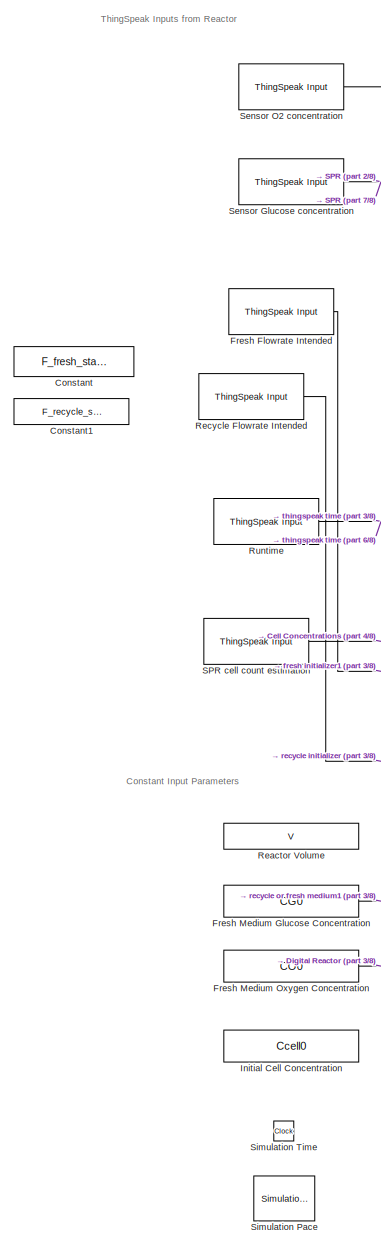
[diagram: root canvas - part 1/8, left side, full height]
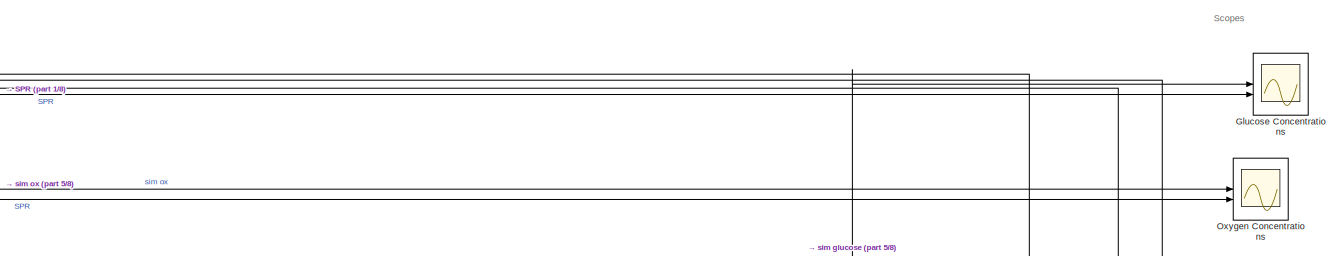
[diagram: root canvas - part 2/8, top right region]
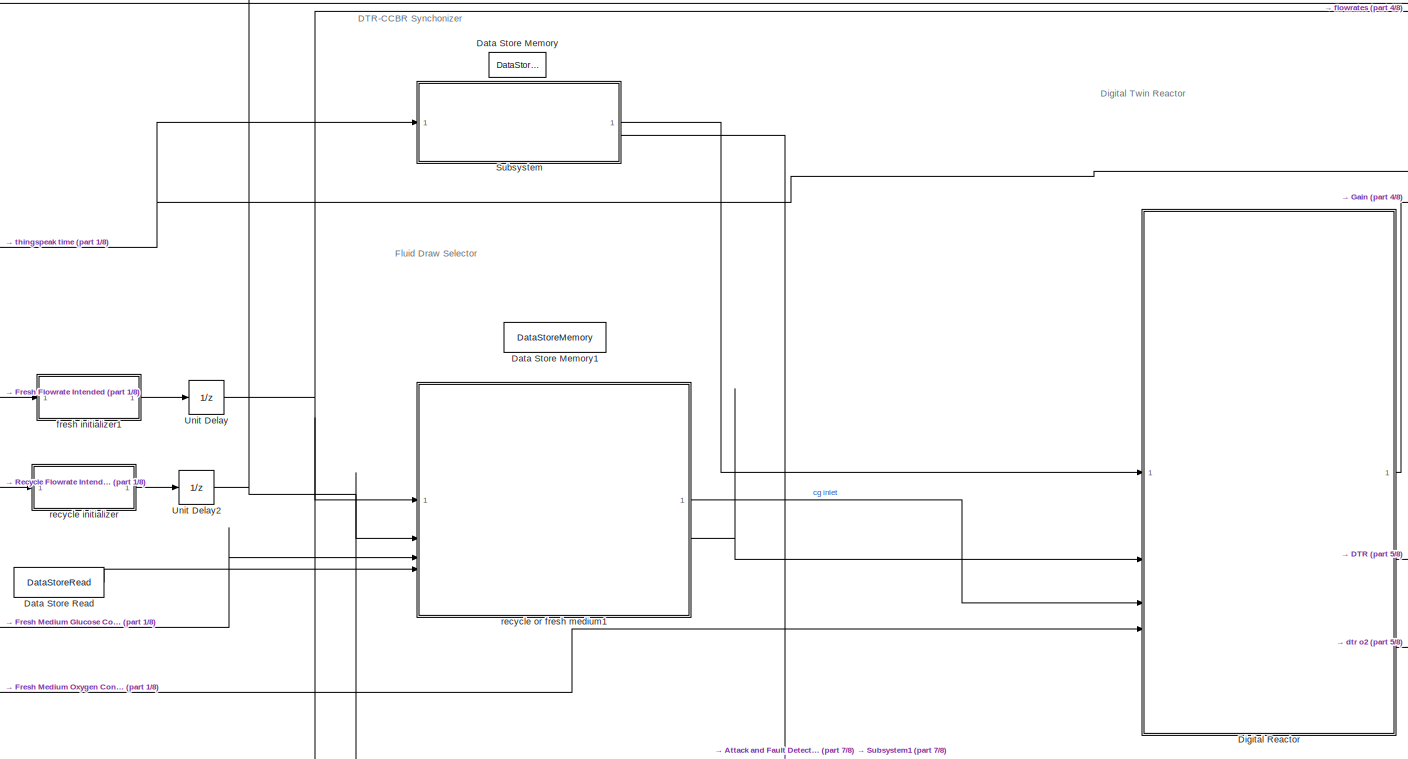
[diagram: root canvas - part 3/8, middle left region]
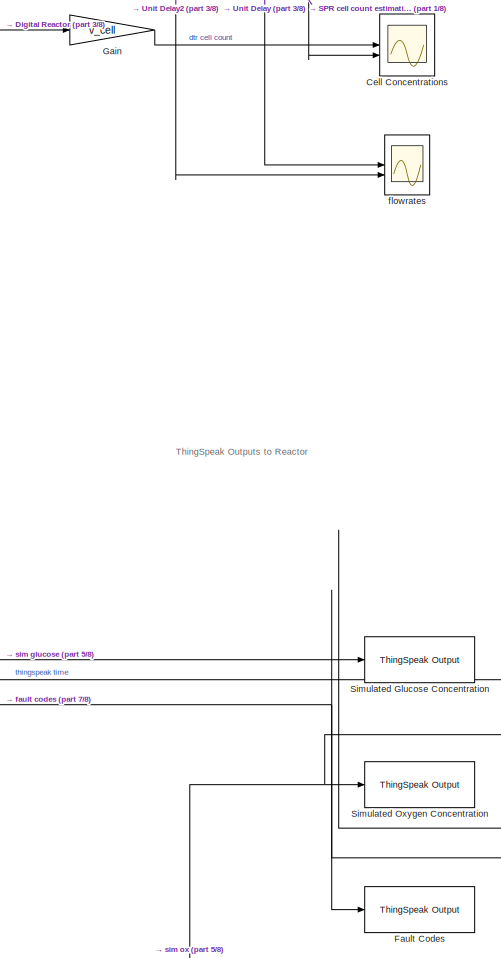
[diagram: root canvas - part 4/8, middle right region]
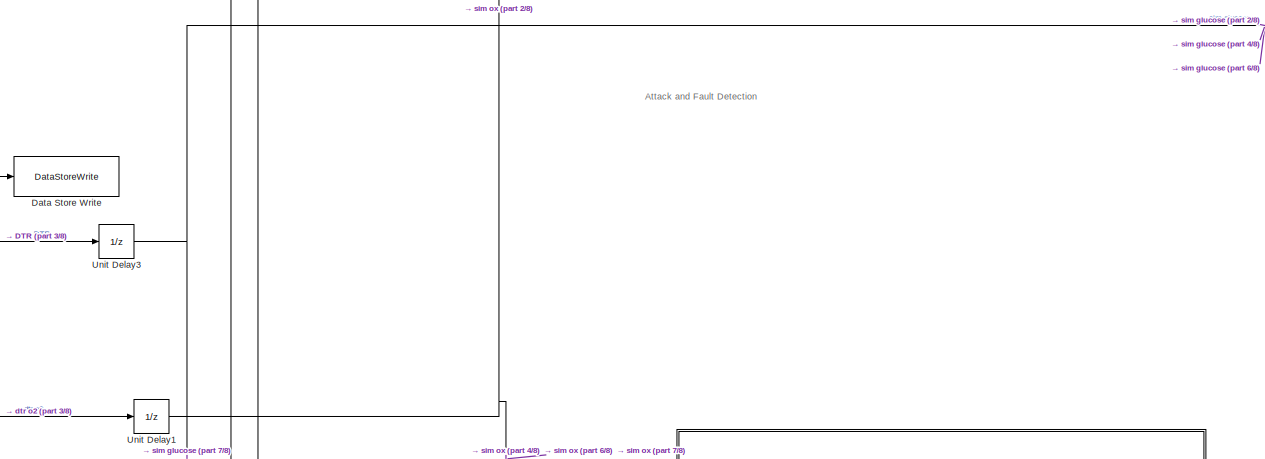
[diagram: root canvas - part 5/8, central region]
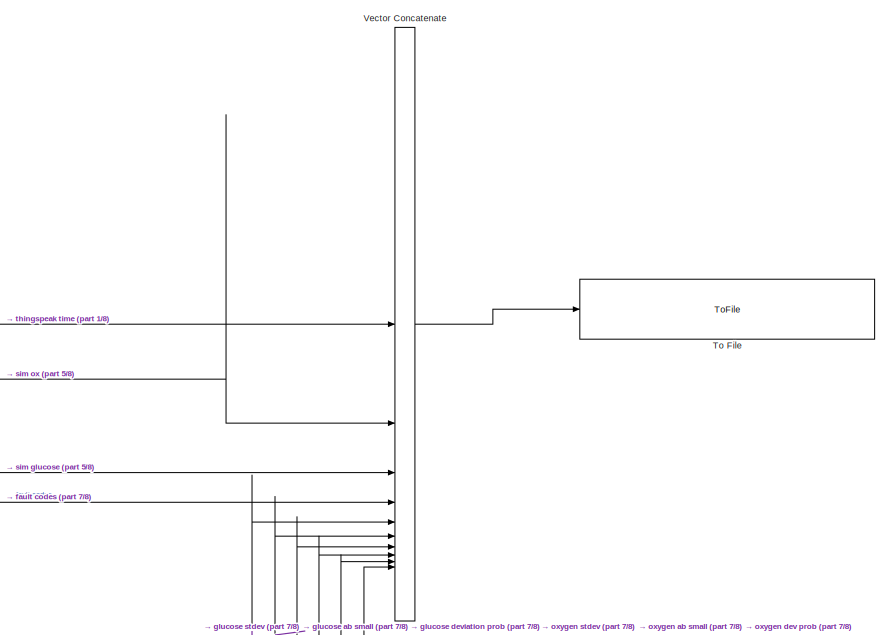
[diagram: root canvas - part 6/8, bottom right region]
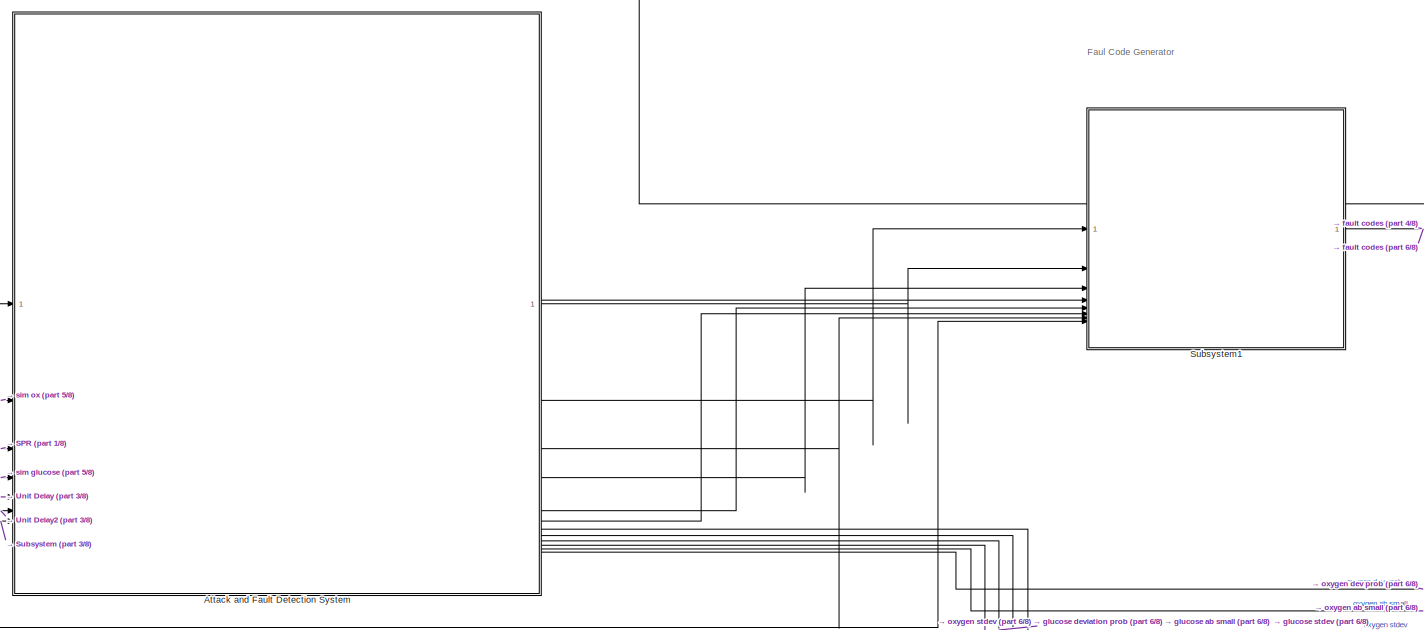
[diagram: root canvas - part 7/8, bottom center region]
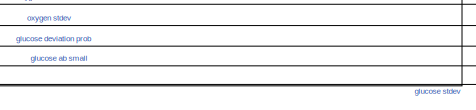
[diagram: root canvas - part 8/8, bottom right region]
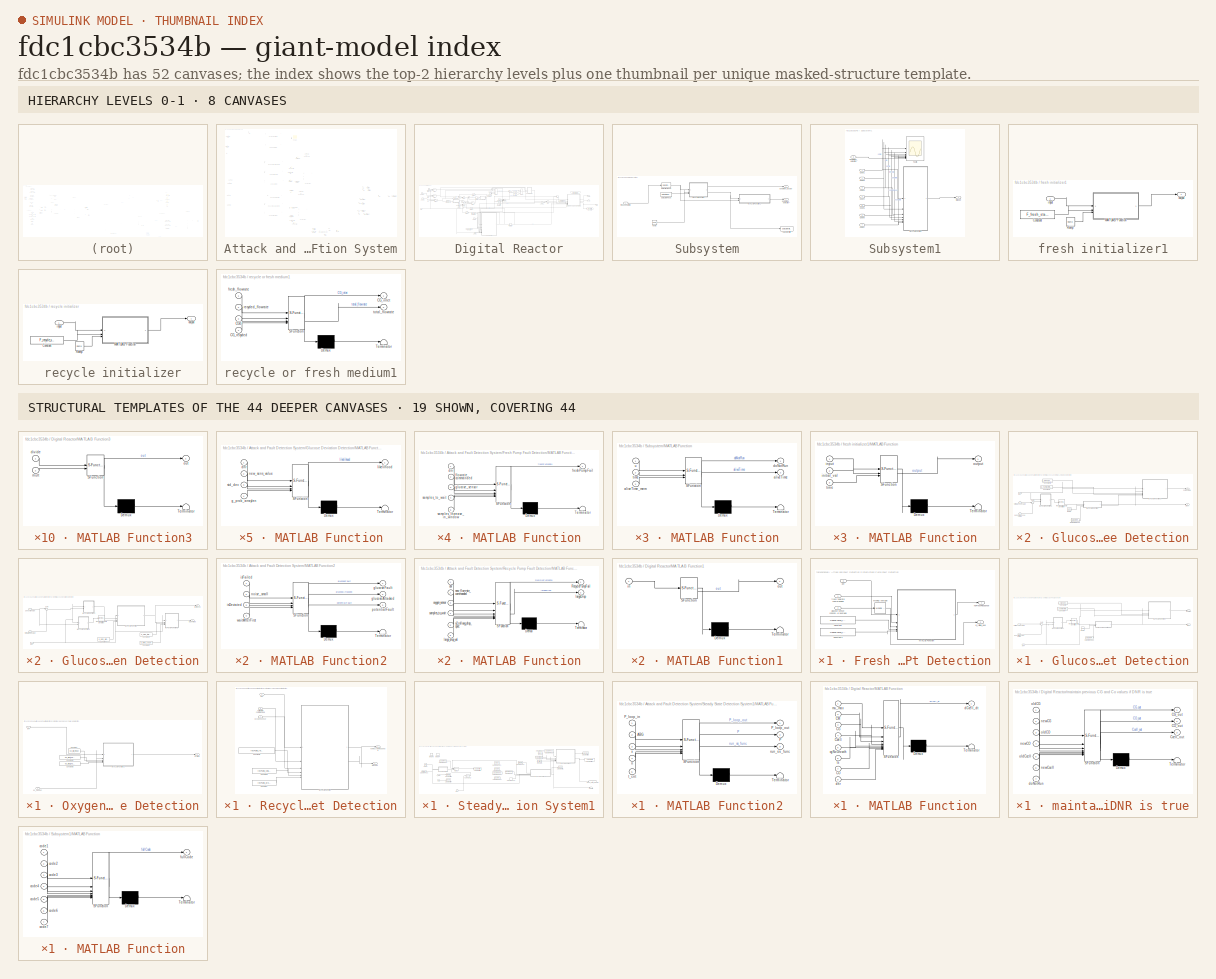
[diagram: thumbnail index - top-2 hierarchy levels (8 canvases) + 19 structural-template representatives of the remaining 44 canvases]
MODEL slx_fdc1cbc3534b
KIND model
CONFIG AbsTol = auto
CONFIG EnableMultiTasking = off
CONFIG FixedStep = ts
CONFIG MaxStep = auto
CONFIG MinStep = auto
CONFIG RelTol = 1e-3
CONFIG SampleTimeConstraint = Unconstrained
CONFIG SolverName = FixedStepAuto
CONFIG StartTime = 0.0
CONFIG StopTime = 515
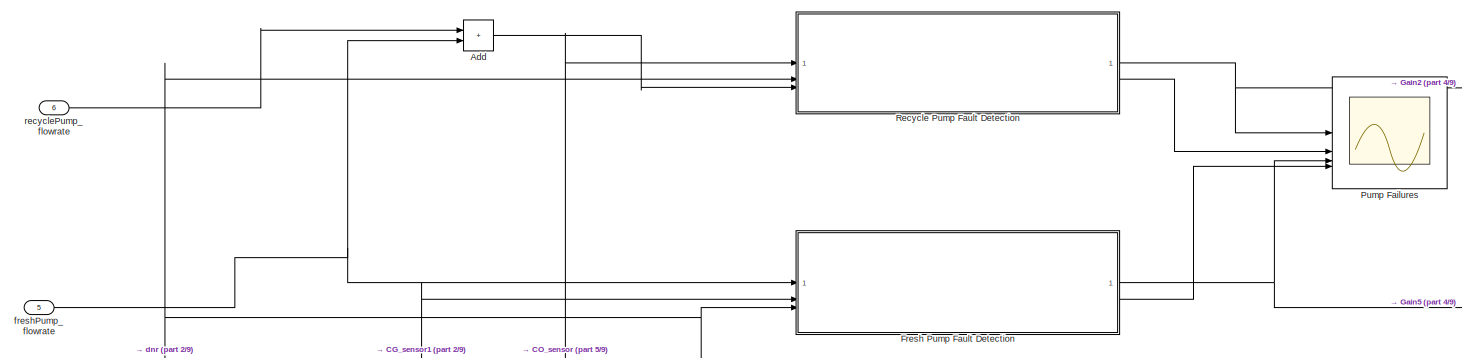
[diagram: Attack and Fault Detection System - part 1/9, top left region]
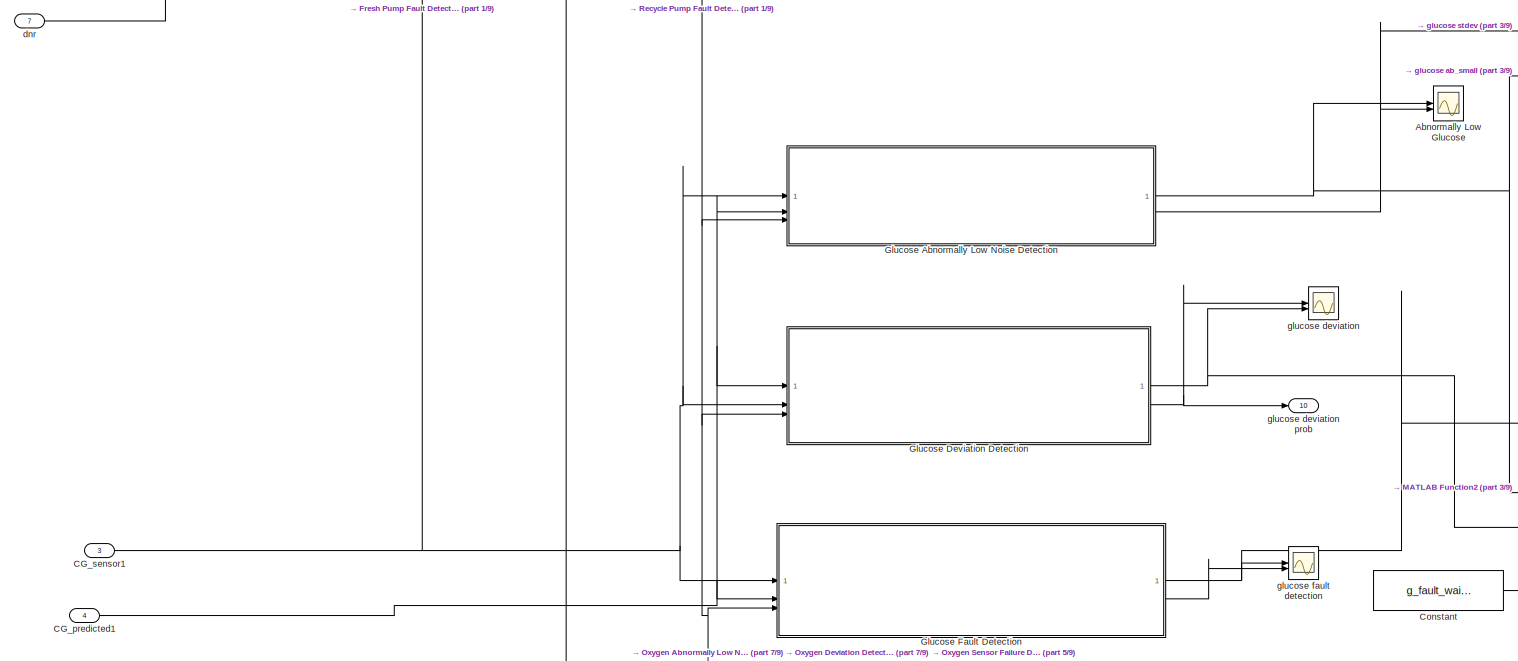
[diagram: Attack and Fault Detection System - part 2/9, middle left region]
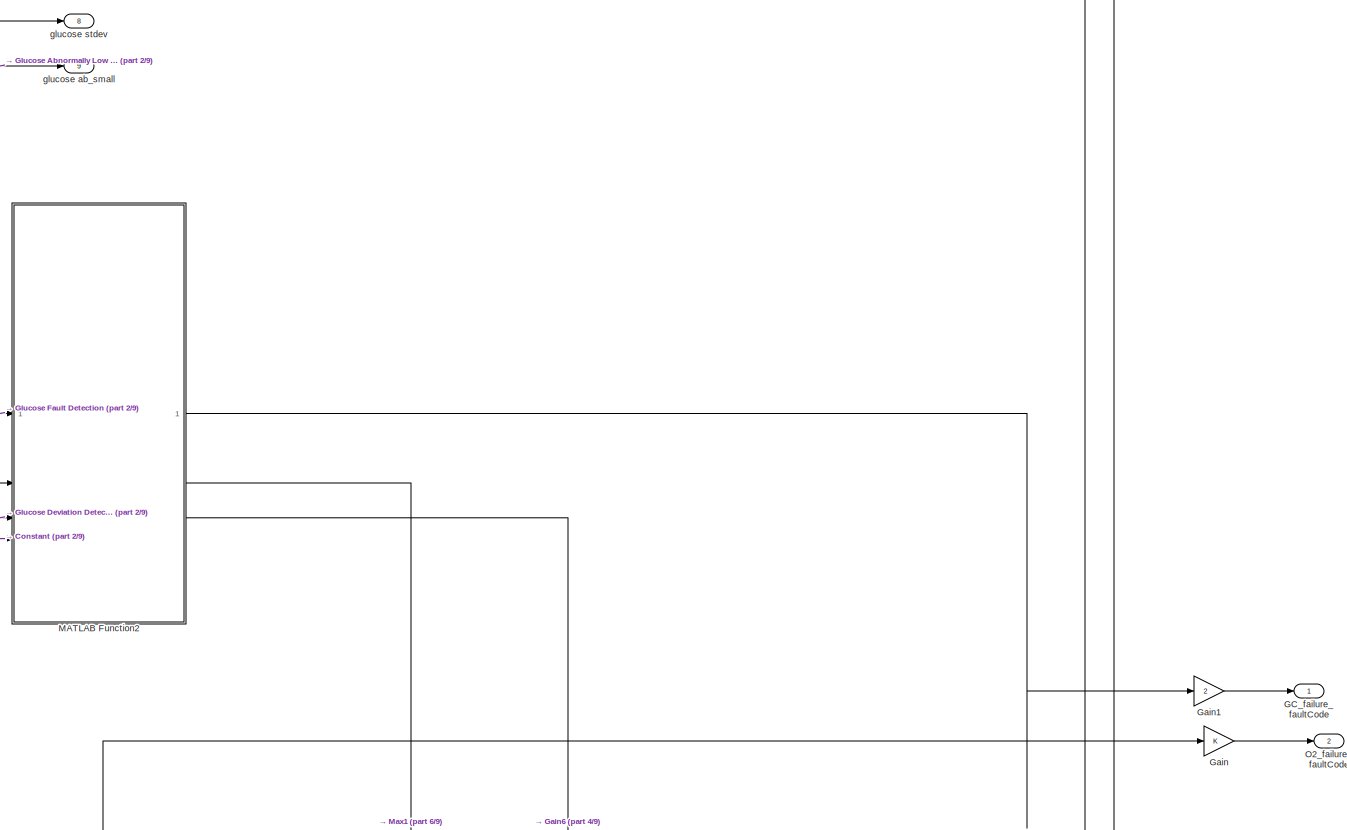
[diagram: Attack and Fault Detection System - part 3/9, central region]
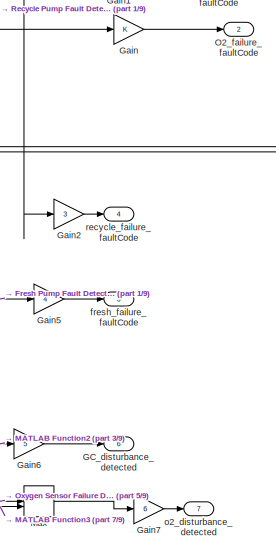
[diagram: Attack and Fault Detection System - part 4/9, bottom right region]
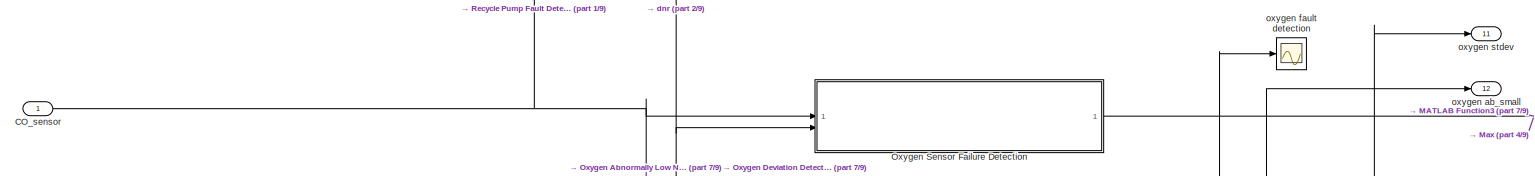
[diagram: Attack and Fault Detection System - part 5/9, middle left region]
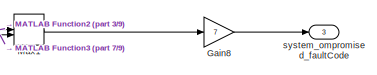
[diagram: Attack and Fault Detection System - part 6/9, middle right region]
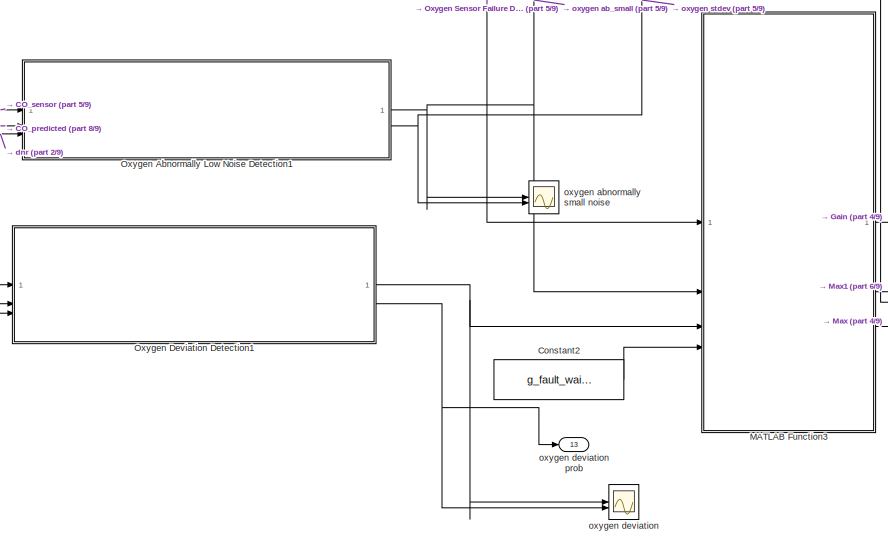
[diagram: Attack and Fault Detection System - part 7/9, bottom center region]
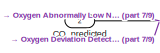
[diagram: Attack and Fault Detection System - part 8/9, bottom left region]
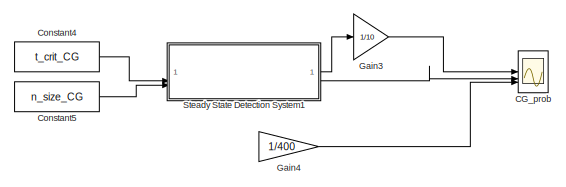
[diagram: Attack and Fault Detection System - part 9/9, bottom center region]
BLOCK [SubSystem] Attack and Fault Detection System
BLOCK [Scope] Attack and Fault Detection System/Abnormally Low Glucose
  Floating = off
  NumInputPorts = 2
  ScopeSpecificationString = Simulink.scopes.TimeScopeBlockCfg('CurrentConfiguration', extmgr.ConfigurationSet(extmgr.Configuration('Core','General UI',true),extmgr.Configuration('Core','Source UI',true),extmgr.Configuration('Sources','WiredSimulink',true,'DataLoggingVariableName','ScopeData1'),extmgr.Configuration('Visuals','Time Domain',true,'SerializedDisplays',{struct('MinYLimReal','-0.1147','MaxYLimReal','6.68184','YLabe...<+1551ch>
BLOCK [Sum] Attack and Fault Detection System/Add
  IconShape = rectangular
BLOCK [Inport] Attack and Fault Detection System/CG_predicted1
  Port = 4
BLOCK [Scope] Attack and Fault Detection System/CG_prob
  Commented = on
  Floating = off
  NumInputPorts = 3
  ScopeSpecificationString = Simulink.scopes.TimeScopeBlockCfg('CurrentConfiguration', extmgr.ConfigurationSet(extmgr.Configuration('Core','General UI',true),extmgr.Configuration('Core','Source UI',true),extmgr.Configuration('Sources','WiredSimulink',true,'DataLoggingVariableName','ScopeData3'),extmgr.Configuration('Visuals','Time Domain',true,'SerializedDisplays',{struct('MinYLimReal','-0.16191','MaxYLimReal','1.45722','YLab...<+1505ch>
BLOCK [Inport] Attack and Fault Detection System/CG_sensor1
  Port = 3
BLOCK [Inport] Attack and Fault Detection System/CO_predicted
  Port = 2
BLOCK [Inport] Attack and Fault Detection System/CO_sensor
BLOCK [Constant] Attack and Fault Detection System/Constant
  Value = g_fault_wait_time
BLOCK [Constant] Attack and Fault Detection System/Constant2
  Value = g_fault_wait_time
BLOCK [Constant] Attack and Fault Detection System/Constant4
  Commented = on
  Value = t_crit_CG
BLOCK [Constant] Attack and Fault Detection System/Constant5
  Commented = on
  Value = n_size_CG
BLOCK [SubSystem] Attack and Fault Detection System/Fresh Pump Fault Detection
BLOCK [Constant] Attack and Fault Detection System/Fresh Pump Fault Detection/Constant
  Value = freshPump_response_window
BLOCK [Constant] Attack and Fault Detection System/Fresh Pump Fault Detection/Constant1
  Value = freshPump_response_increases
BLOCK [SubSystem] Attack and Fault Detection System/Fresh Pump Fault Detection/MATLAB Function
  ErrorFcn = Stateflow.Translate.translate
  LibrarySourceBlock = simulink/User-Defined\nFunctions/MATLAB Function
  PermitHierarchicalResolution = ExplicitOnly
  SFBlockType = MATLAB Function
  TreatAsAtomicUnit = on
BLOCK [Demux] Attack and Fault Detection System/Fresh Pump Fault Detection/MATLAB Function/ Demux 
  Outputs = 1
BLOCK [S-Function] Attack and Fault Detection System/Fresh Pump Fault Detection/MATLAB Function/ SFunction 
  EnableBusSupport = on
  FunctionName = sf_sfun
  PortCounts = [5 2]
  SFcnIsStateOwnerBlock = off
  SFunctionDeploymentMode = off
  Tag = Stateflow S-Function 33
BLOCK [Terminator] Attack and Fault Detection System/Fresh Pump Fault Detection/MATLAB Function/ Terminator 
BLOCK [Inport] Attack and Fault Detection System/Fresh Pump Fault Detection/MATLAB Function/dnr
BLOCK [Inport] Attack and Fault Detection System/Fresh Pump Fault Detection/MATLAB Function/flowrate_commanded
  Port = 2
BLOCK [Outport] Attack and Fault Detection System/Fresh Pump Fault Detection/MATLAB Function/freshPumpFail
BLOCK [Inport] Attack and Fault Detection System/Fresh Pump Fault Detection/MATLAB Function/glucose_sensor
  Port = 3
BLOCK [Inport] Attack and Fault Detection System/Fresh Pump Fault Detection/MATLAB Function/samples_increase_in_window
  Port = 5
BLOCK [Inport] Attack and Fault Detection System/Fresh Pump Fault Detection/MATLAB Function/samples_to_wait
  Port = 4
BLOCK [Reference] Attack and Fault Detection System/Fresh Pump Fault Detection/Moving Average  REF=dspstat3/Moving
Average
  SourceBlock = dspstat3/Moving\nAverage
  SourceType = dsp.simulink.MovingAverage
BLOCK [Inport] Attack and Fault Detection System/Fresh Pump Fault Detection/dnr
  Port = 3
BLOCK [Inport] Attack and Fault Detection System/Fresh Pump Fault Detection/fresh flowrate commanded
BLOCK [Outport] Attack and Fault Detection System/Fresh Pump Fault Detection/g_rolling_avg
  Port = 2
BLOCK [Inport] Attack and Fault Detection System/Fresh Pump Fault Detection/glucose sensor concentration rolling average
  Port = 2
BLOCK [Outport] Attack and Fault Detection System/Fresh Pump Fault Detection/noFreshResponse
BLOCK [Outport] Attack and Fault Detection System/GC_disturbance_detected
  Port = 6
BLOCK [Outport] Attack and Fault Detection System/GC_failure_faultCode
BLOCK [Gain] Attack and Fault Detection System/Gain
BLOCK [Gain] Attack and Fault Detection System/Gain1
  Gain = 2
BLOCK [Gain] Attack and Fault Detection System/Gain2
  Gain = 3
BLOCK [Gain] Attack and Fault Detection System/Gain3
  Commented = on
  Gain = 1/10
BLOCK [Gain] Attack and Fault Detection System/Gain4
  Commented = on
  Gain = 1/400
BLOCK [Gain] Attack and Fault Detection System/Gain5
  Gain = 4
BLOCK [Gain] Attack and Fault Detection System/Gain6
  Gain = 5
BLOCK [Gain] Attack and Fault Detection System/Gain7
  Gain = 6
BLOCK [Gain] Attack and Fault Detection System/Gain8
  Gain = 7
BLOCK [SubSystem] Attack and Fault Detection System/Glucose Abnormally Low Noise Detection
BLOCK [Constant] Attack and Fault Detection System/Glucose Abnormally Low Noise Detection/Constant6
  Value = g_lownoise_val
BLOCK [Constant] Attack and Fault Detection System/Glucose Abnormally Low Noise Detection/Constant7
  Value = g_numpoints_low
BLOCK [DataStoreRead] Attack and Fault Detection System/Glucose Abnormally Low Noise Detection/Data Store Read
  DataStoreName = aliveTime
  IndexOptions = Index vector (dialog)
  Indices = 1
  OutputSizes = 1
BLOCK [SubSystem] Attack and Fault Detection System/Glucose Abnormally Low Noise Detection/MATLAB Function
  ErrorFcn = Stateflow.Translate.translate
  LibrarySourceBlock = simulink/User-Defined\nFunctions/MATLAB Function
  PermitHierarchicalResolution = ExplicitOnly
  SFBlockType = MATLAB Function
  TreatAsAtomicUnit = on
BLOCK [Demux] Attack and Fault Detection System/Glucose Abnormally Low Noise Detection/MATLAB Function/ Demux 
  Outputs = 1
BLOCK [S-Function] Attack and Fault Detection System/Glucose Abnormally Low Noise Detection/MATLAB Function/ SFunction 
  EnableBusSupport = on
  FunctionName = sf_sfun
  PortCounts = [3 3]
  SFcnIsStateOwnerBlock = off
  SFunctionDeploymentMode = off
  Tag = Stateflow S-Function 25
BLOCK [Terminator] Attack and Fault Detection System/Glucose Abnormally Low Noise Detection/MATLAB Function/ Terminator 
BLOCK [Inport] Attack and Fault Detection System/Glucose Abnormally Low Noise Detection/MATLAB Function/aliveTime
  Port = 3
BLOCK [Outport] Attack and Fault Detection System/Glucose Abnormally Low Noise Detection/MATLAB Function/ignore_over
  Port = 2
BLOCK [Inport] Attack and Fault Detection System/Glucose Abnormally Low Noise Detection/MATLAB Function/in
BLOCK [Outport] Attack and Fault Detection System/Glucose Abnormally Low Noise Detection/MATLAB Function/out
BLOCK [Inport] Attack and Fault Detection System/Glucose Abnormally Low Noise Detection/MATLAB Function/time
  Port = 2
BLOCK [SubSystem] Attack and Fault Detection System/Glucose Abnormally Low Noise Detection/MATLAB Function1
  ErrorFcn = Stateflow.Translate.translate
  LibrarySourceBlock = simulink/User-Defined\nFunctions/MATLAB Function
  PermitHierarchicalResolution = ExplicitOnly
  SFBlockType = MATLAB Function
  TreatAsAtomicUnit = on
BLOCK [Demux] Attack and Fault Detection System/Glucose Abnormally Low Noise Detection/MATLAB Function1/ Demux 
  Outputs = 1
BLOCK [S-Function] Attack and Fault Detection System/Glucose Abnormally Low Noise Detection/MATLAB Function1/ SFunction 
  EnableBusSupport = on
  FunctionName = sf_sfun
  PortCounts = [2 2]
  SFcnIsStateOwnerBlock = off
  SFunctionDeploymentMode = off
  Tag = Stateflow S-Function 3
BLOCK [Terminator] Attack and Fault Detection System/Glucose Abnormally Low Noise Detection/MATLAB Function1/ Terminator 
BLOCK [Inport] Attack and Fault Detection System/Glucose Abnormally Low Noise Detection/MATLAB Function1/DNR
BLOCK [Inport] Attack and Fault Detection System/Glucose Abnormally Low Noise Detection/MATLAB Function1/input
  Port = 2
BLOCK [Outport] Attack and Fault Detection System/Glucose Abnormally Low Noise Detection/MATLAB Function1/output
BLOCK [SubSystem] Attack and Fault Detection System/Glucose Abnormally Low Noise Detection/MATLAB Function3
  ErrorFcn = Stateflow.Translate.translate
  PermitHierarchicalResolution = ExplicitOnly
  SFBlockType = MATLAB Function
  TreatAsAtomicUnit = on
BLOCK [Demux] Attack and Fault Detection System/Glucose Abnormally Low Noise Detection/MATLAB Function3/ Demux 
  Outputs = 1
BLOCK [S-Function] Attack and Fault Detection System/Glucose Abnormally Low Noise Detection/MATLAB Function3/ SFunction 
  EnableBusSupport = on
  FunctionName = sf_sfun
  PortCounts = [5 2]
  SFcnIsStateOwnerBlock = off
  SFunctionDeploymentMode = off
  Tag = Stateflow S-Function 19
BLOCK [Terminator] Attack and Fault Detection System/Glucose Abnormally Low Noise Detection/MATLAB Function3/ Terminator 
BLOCK [Inport] Attack and Fault Detection System/Glucose Abnormally Low Noise Detection/MATLAB Function3/dnr
BLOCK [Inport] Attack and Fault Detection System/Glucose Abnormally Low Noise Detection/MATLAB Function3/ignore_over
  Port = 5
BLOCK [Outport] Attack and Fault Detection System/Glucose Abnormally Low Noise Detection/MATLAB Function3/noiseSmall
BLOCK [Inport] Attack and Fault Detection System/Glucose Abnormally Low Noise Detection/MATLAB Function3/num_points
  Port = 4
BLOCK [Inport] Attack and Fault Detection System/Glucose Abnormally Low Noise Detection/MATLAB Function3/stdev_sensor
  Port = 2
BLOCK [Inport] Attack and Fault Detection System/Glucose Abnormally Low Noise Detection/MATLAB Function3/stdev_tol
  Port = 3
BLOCK [Reference] Attack and Fault Detection System/Glucose Abnormally Low Noise Detection/Moving Standard Deviation  REF=dspstat3/Moving
Standard
Deviation
  SourceBlock = dspstat3/Moving\nStandard\nDeviation
  SourceType = dsp.simulink.MovingStandardDeviation
BLOCK [Reference] Attack and Fault Detection System/Glucose Abnormally Low Noise Detection/Ramp  REF=simulink/Sources/Ramp
  SourceBlock = simulink/Sources/Ramp
  SourceType = Ramp
BLOCK [Sum] Attack and Fault Detection System/Glucose Abnormally Low Noise Detection/Sum
  Inputs = |+-
BLOCK [Inport] Attack and Fault Detection System/Glucose Abnormally Low Noise Detection/dnr
  Port = 3
BLOCK [Outport] Attack and Fault Detection System/Glucose Abnormally Low Noise Detection/noiseSmall
BLOCK [Inport] Attack and Fault Detection System/Glucose Abnormally Low Noise Detection/sensor glucose value
BLOCK [Inport] Attack and Fault Detection System/Glucose Abnormally Low Noise Detection/sim glucose value
  Port = 2
BLOCK [Outport] Attack and Fault Detection System/Glucose Abnormally Low Noise Detection/stdev
  Port = 2
BLOCK [SubSystem] Attack and Fault Detection System/Glucose Deviation Detection
BLOCK [Constant] Attack and Fault Detection System/Glucose Deviation Detection/Constant
  Value = g_prob_arraylen
BLOCK [Constant] Attack and Fault Detection System/Glucose Deviation Detection/Constant1
  Value = g_prob_thresh
BLOCK [Constant] Attack and Fault Detection System/Glucose Deviation Detection/Constant2
  Value = g_prob_count
BLOCK [SubSystem] Attack and Fault Detection System/Glucose Deviation Detection/MATLAB Function
  ErrorFcn = Stateflow.Translate.translate
  LibrarySourceBlock = simulink/User-Defined\nFunctions/MATLAB Function
  PermitHierarchicalResolution = ExplicitOnly
  SFBlockType = MATLAB Function
  TreatAsAtomicUnit = on
BLOCK [Demux] Attack and Fault Detection System/Glucose Deviation Detection/MATLAB Function/ Demux 
  Outputs = 1
BLOCK [S-Function] Attack and Fault Detection System/Glucose Deviation Detection/MATLAB Function/ SFunction 
  EnableBusSupport = on
  FunctionName = sf_sfun
  PortCounts = [4 2]
  SFcnIsStateOwnerBlock = off
  SFunctionDeploymentMode = off
  Tag = Stateflow S-Function 20
BLOCK [Terminator] Attack and Fault Detection System/Glucose Deviation Detection/MATLAB Function/ Terminator 
BLOCK [Inport] Attack and Fault Detection System/Glucose Deviation Detection/MATLAB Function/dnr
BLOCK [Inport] Attack and Fault Detection System/Glucose Deviation Detection/MATLAB Function/g_prob_arraylen
  Port = 4
BLOCK [Outport] Attack and Fault Detection System/Glucose Deviation Detection/MATLAB Function/likelihood
BLOCK [Inport] Attack and Fault Detection System/Glucose Deviation Detection/MATLAB Function/new_sens_value
  Port = 2
BLOCK [Inport] Attack and Fault Detection System/Glucose Deviation Detection/MATLAB Function/std_dev
  Port = 3
BLOCK [SubSystem] Attack and Fault Detection System/Glucose Deviation Detection/MATLAB Function1
  ErrorFcn = Stateflow.Translate.translate
  LibrarySourceBlock = simulink/User-Defined\nFunctions/MATLAB Function
  PermitHierarchicalResolution = ExplicitOnly
  SFBlockType = MATLAB Function
  TreatAsAtomicUnit = on
BLOCK [Demux] Attack and Fault Detection System/Glucose Deviation Detection/MATLAB Function1/ Demux 
  Outputs = 1
BLOCK [S-Function] Attack and Fault Detection System/Glucose Deviation Detection/MATLAB Function1/ SFunction 
  EnableBusSupport = on
  FunctionName = sf_sfun
  PortCounts = [4 2]
  SFcnIsStateOwnerBlock = off
  SFunctionDeploymentMode = off
  Tag = Stateflow S-Function 26
BLOCK [Terminator] Attack and Fault Detection System/Glucose Deviation Detection/MATLAB Function1/ Terminator 
BLOCK [Inport] Attack and Fault Detection System/Glucose Deviation Detection/MATLAB Function1/dnr
BLOCK [Outport] Attack and Fault Detection System/Glucose Deviation Detection/MATLAB Function1/isDeviated
BLOCK [Inport] Attack and Fault Detection System/Glucose Deviation Detection/MATLAB Function1/prob
  Port = 2
BLOCK [Inport] Attack and Fault Detection System/Glucose Deviation Detection/MATLAB Function1/thresh
  Port = 3
BLOCK [Inport] Attack and Fault Detection System/Glucose Deviation Detection/MATLAB Function1/thresh_count
  Port = 4
BLOCK [SubSystem] Attack and Fault Detection System/Glucose Deviation Detection/MATLAB Function2
  ErrorFcn = Stateflow.Translate.translate
  LibrarySourceBlock = simulink/User-Defined\nFunctions/MATLAB Function
  PermitHierarchicalResolution = ExplicitOnly
  SFBlockType = MATLAB Function
  TreatAsAtomicUnit = on
BLOCK [Demux] Attack and Fault Detection System/Glucose Deviation Detection/MATLAB Function2/ Demux 
  Outputs = 1
BLOCK [S-Function] Attack and Fault Detection System/Glucose Deviation Detection/MATLAB Function2/ SFunction 
  EnableBusSupport = on
  FunctionName = sf_sfun
  PortCounts = [2 2]
  SFcnIsStateOwnerBlock = off
  SFunctionDeploymentMode = off
  Tag = Stateflow S-Function 10
BLOCK [Terminator] Attack and Fault Detection System/Glucose Deviation Detection/MATLAB Function2/ Terminator 
BLOCK [Inport] Attack and Fault Detection System/Glucose Deviation Detection/MATLAB Function2/DNR
BLOCK [Inport] Attack and Fault Detection System/Glucose Deviation Detection/MATLAB Function2/input
  Port = 2
BLOCK [Outport] Attack and Fault Detection System/Glucose Deviation Detection/MATLAB Function2/output
BLOCK [SubSystem] Attack and Fault Detection System/Glucose Deviation Detection/MATLAB Function3
  ErrorFcn = Stateflow.Translate.translate
  LibrarySourceBlock = simulink/User-Defined\nFunctions/MATLAB Function
  PermitHierarchicalResolution = ExplicitOnly
  SFBlockType = MATLAB Function
  TreatAsAtomicUnit = on
BLOCK [Demux] Attack and Fault Detection System/Glucose Deviation Detection/MATLAB Function3/ Demux 
  Outputs = 1
BLOCK [S-Function] Attack and Fault Detection System/Glucose Deviation Detection/MATLAB Function3/ SFunction 
  EnableBusSupport = on
  FunctionName = sf_sfun
  PortCounts = [2 2]
  SFcnIsStateOwnerBlock = off
  SFunctionDeploymentMode = off
  Tag = Stateflow S-Function 11
BLOCK [Terminator] Attack and Fault Detection System/Glucose Deviation Detection/MATLAB Function3/ Terminator 
BLOCK [Inport] Attack and Fault Detection System/Glucose Deviation Detection/MATLAB Function3/DNR
BLOCK [Inport] Attack and Fault Detection System/Glucose Deviation Detection/MATLAB Function3/input
  Port = 2
BLOCK [Outport] Attack and Fault Detection System/Glucose Deviation Detection/MATLAB Function3/output
BLOCK [Reference] Attack and Fault Detection System/Glucose Deviation Detection/Moving Standard Deviation  REF=dspstat3/Moving
Standard
Deviation
  SourceBlock = dspstat3/Moving\nStandard\nDeviation
  SourceType = dsp.simulink.MovingStandardDeviation
BLOCK [Inport] Attack and Fault Detection System/Glucose Deviation Detection/Sensor g value
  Port = 2
BLOCK [Inport] Attack and Fault Detection System/Glucose Deviation Detection/Simulated g value
BLOCK [Sum] Attack and Fault Detection System/Glucose Deviation Detection/Sum
  Inputs = |+-
BLOCK [Inport] Attack and Fault Detection System/Glucose Deviation Detection/dnr
  Port = 3
BLOCK [Outport] Attack and Fault Detection System/Glucose Deviation Detection/isDeviated
BLOCK [Outport] Attack and Fault Detection System/Glucose Deviation Detection/likelihood
  Port = 2
BLOCK [SubSystem] Attack and Fault Detection System/Glucose Fault Detection
BLOCK [Constant] Attack and Fault Detection System/Glucose Fault Detection/Constant6
  Value = g_standev_tol
BLOCK [Constant] Attack and Fault Detection System/Glucose Fault Detection/Constant7
  Value = g_numpoints_fail
BLOCK [DataStoreRead] Attack and Fault Detection System/Glucose Fault Detection/Data Store Read
  DataStoreName = aliveTime
  IndexOptions = Index vector (dialog)
  Indices = 1
  OutputSizes = 1
BLOCK [SubSystem] Attack and Fault Detection System/Glucose Fault Detection/MATLAB Function
  ErrorFcn = Stateflow.Translate.translate
  LibrarySourceBlock = simulink/User-Defined\nFunctions/MATLAB Function
  PermitHierarchicalResolution = ExplicitOnly
  SFBlockType = MATLAB Function
  TreatAsAtomicUnit = on
BLOCK [Demux] Attack and Fault Detection System/Glucose Fault Detection/MATLAB Function/ Demux 
  Outputs = 1
BLOCK [S-Function] Attack and Fault Detection System/Glucose Fault Detection/MATLAB Function/ SFunction 
  EnableBusSupport = on
  FunctionName = sf_sfun
  PortCounts = [3 2]
  SFcnIsStateOwnerBlock = off
  SFunctionDeploymentMode = off
  Tag = Stateflow S-Function 1
BLOCK [Terminator] Attack and Fault Detection System/Glucose Fault Detection/MATLAB Function/ Terminator 
BLOCK [Inport] Attack and Fault Detection System/Glucose Fault Detection/MATLAB Function/aliveTime
  Port = 3
BLOCK [Inport] Attack and Fault Detection System/Glucose Fault Detection/MATLAB Function/in
BLOCK [Outport] Attack and Fault Detection System/Glucose Fault Detection/MATLAB Function/out
BLOCK [Inport] Attack and Fault Detection System/Glucose Fault Detection/MATLAB Function/time
  Port = 2
BLOCK [SubSystem] Attack and Fault Detection System/Glucose Fault Detection/MATLAB Function1
  ErrorFcn = Stateflow.Translate.translate
  LibrarySourceBlock = simulink/User-Defined\nFunctions/MATLAB Function
  PermitHierarchicalResolution = ExplicitOnly
  SFBlockType = MATLAB Function
  TreatAsAtomicUnit = on
BLOCK [Demux] Attack and Fault Detection System/Glucose Fault Detection/MATLAB Function1/ Demux 
  Outputs = 1
BLOCK [S-Function] Attack and Fault Detection System/Glucose Fault Detection/MATLAB Function1/ SFunction 
  EnableBusSupport = on
  FunctionName = sf_sfun
  PortCounts = [2 2]
  SFcnIsStateOwnerBlock = off
  SFunctionDeploymentMode = off
  Tag = Stateflow S-Function 12
BLOCK [Terminator] Attack and Fault Detection System/Glucose Fault Detection/MATLAB Function1/ Terminator 
BLOCK [Inport] Attack and Fault Detection System/Glucose Fault Detection/MATLAB Function1/DNR
BLOCK [Inport] Attack and Fault Detection System/Glucose Fault Detection/MATLAB Function1/input
  Port = 2
BLOCK [Outport] Attack and Fault Detection System/Glucose Fault Detection/MATLAB Function1/output
BLOCK [SubSystem] Attack and Fault Detection System/Glucose Fault Detection/MATLAB Function3
  ErrorFcn = Stateflow.Translate.translate
  PermitHierarchicalResolution = ExplicitOnly
  SFBlockType = MATLAB Function
  TreatAsAtomicUnit = on
BLOCK [Demux] Attack and Fault Detection System/Glucose Fault Detection/MATLAB Function3/ Demux 
  Outputs = 1
BLOCK [S-Function] Attack and Fault Detection System/Glucose Fault Detection/MATLAB Function3/ SFunction 
  EnableBusSupport = on
  FunctionName = sf_sfun
  PortCounts = [4 2]
  SFcnIsStateOwnerBlock = off
  SFunctionDeploymentMode = off
  Tag = Stateflow S-Function 29
BLOCK [Terminator] Attack and Fault Detection System/Glucose Fault Detection/MATLAB Function3/ Terminator 
BLOCK [Inport] Attack and Fault Detection System/Glucose Fault Detection/MATLAB Function3/dnr
BLOCK [Outport] Attack and Fault Detection System/Glucose Fault Detection/MATLAB Function3/isFailed
BLOCK [Inport] Attack and Fault Detection System/Glucose Fault Detection/MATLAB Function3/num_points
  Port = 4
BLOCK [Inport] Attack and Fault Detection System/Glucose Fault Detection/MATLAB Function3/stdev_sensor
  Port = 2
BLOCK [Inport] Attack and Fault Detection System/Glucose Fault Detection/MATLAB Function3/stdev_tol
  Port = 3
BLOCK [Reference] Attack and Fault Detection System/Glucose Fault Detection/Moving Standard Deviation  REF=dspstat3/Moving
Standard
Deviation
  SourceBlock = dspstat3/Moving\nStandard\nDeviation
  SourceType = dsp.simulink.MovingStandardDeviation
BLOCK [Reference] Attack and Fault Detection System/Glucose Fault Detection/Ramp  REF=simulink/Sources/Ramp
  SourceBlock = simulink/Sources/Ramp
  SourceType = Ramp
BLOCK [Sum] Attack and Fault Detection System/Glucose Fault Detection/Sum
  Inputs = |+-
BLOCK [Inport] Attack and Fault Detection System/Glucose Fault Detection/dnr
  Port = 3
BLOCK [Outport] Attack and Fault Detection System/Glucose Fault Detection/isFailed
BLOCK [Inport] Attack and Fault Detection System/Glucose Fault Detection/sensor glucose value
BLOCK [Inport] Attack and Fault Detection System/Glucose Fault Detection/sim glucose value
  Port = 2
BLOCK [Outport] Attack and Fault Detection System/Glucose Fault Detection/stdev
  Port = 2
BLOCK [SubSystem] Attack and Fault Detection System/MATLAB Function2
  ErrorFcn = Stateflow.Translate.translate
  LibrarySourceBlock = simulink/User-Defined\nFunctions/MATLAB Function
  PermitHierarchicalResolution = ExplicitOnly
  SFBlockType = MATLAB Function
  TreatAsAtomicUnit = on
BLOCK [Demux] Attack and Fault Detection System/MATLAB Function2/ Demux 
  Outputs = 1
BLOCK [S-Function] Attack and Fault Detection System/MATLAB Function2/ SFunction 
  EnableBusSupport = on
  FunctionName = sf_sfun
  PortCounts = [4 4]
  SFcnIsStateOwnerBlock = off
  SFunctionDeploymentMode = off
  Tag = Stateflow S-Function 39
BLOCK [Terminator] Attack and Fault Detection System/MATLAB Function2/ Terminator 
BLOCK [Outport] Attack and Fault Detection System/MATLAB Function2/glucoseAttacked
  Port = 2
BLOCK [Outport] Attack and Fault Detection System/MATLAB Function2/glucoseFault
BLOCK [Inport] Attack and Fault Detection System/MATLAB Function2/isDeviated
  Port = 3
BLOCK [Inport] Attack and Fault Detection System/MATLAB Function2/isFailed
BLOCK [Inport] Attack and Fault Detection System/MATLAB Function2/noise_small
  Port = 2
BLOCK [Outport] Attack and Fault Detection System/MATLAB Function2/potentialFault
  Port = 3
BLOCK [Inport] Attack and Fault Detection System/MATLAB Function2/waitAfterFirst
  Port = 4
BLOCK [SubSystem] Attack and Fault Detection System/MATLAB Function3
  ErrorFcn = Stateflow.Translate.translate
  LibrarySourceBlock = simulink/User-Defined\nFunctions/MATLAB Function
  PermitHierarchicalResolution = ExplicitOnly
  SFBlockType = MATLAB Function
  TreatAsAtomicUnit = on
BLOCK [Demux] Attack and Fault Detection System/MATLAB Function3/ Demux 
  Outputs = 1
BLOCK [S-Function] Attack and Fault Detection System/MATLAB Function3/ SFunction 
  EnableBusSupport = on
  FunctionName = sf_sfun
  PortCounts = [4 4]
  SFcnIsStateOwnerBlock = off
  SFunctionDeploymentMode = off
  Tag = Stateflow S-Function 40
BLOCK [Terminator] Attack and Fault Detection System/MATLAB Function3/ Terminator 
BLOCK [Inport] Attack and Fault Detection System/MATLAB Function3/isDeviated
  Port = 3
BLOCK [Inport] Attack and Fault Detection System/MATLAB Function3/isFailed
BLOCK [Inport] Attack and Fault Detection System/MATLAB Function3/noise_small
  Port = 2
BLOCK [Outport] Attack and Fault Detection System/MATLAB Function3/oxygenAttacked
  Port = 2
BLOCK [Outport] Attack and Fault Detection System/MATLAB Function3/oxygenFault
BLOCK [Outport] Attack and Fault Detection System/MATLAB Function3/potentialFault
  Port = 3
BLOCK [Inport] Attack and Fault Detection System/MATLAB Function3/waitAfterFirst
  Port = 4
BLOCK [MinMax] Attack and Fault Detection System/Max
  Function = max
  Inputs = 2
BLOCK [MinMax] Attack and Fault Detection System/Max1
  Function = max
  Inputs = 2
BLOCK [Outport] Attack and Fault Detection System/O2_failure_faultCode
  Port = 2
BLOCK [SubSystem] Attack and Fault Detection System/Oxygen Abnormally Low Noise Detection1
BLOCK [Constant] Attack and Fault Detection System/Oxygen Abnormally Low Noise Detection1/Constant6
  Value = o2_lownoise_val
BLOCK [Constant] Attack and Fault Detection System/Oxygen Abnormally Low Noise Detection1/Constant7
  Value = o2_numpoints_low
BLOCK [DataStoreRead] Attack and Fault Detection System/Oxygen Abnormally Low Noise Detection1/Data Store Read
  DataStoreName = aliveTime
  IndexOptions = Index vector (dialog)
  Indices = 1
  OutputSizes = 1
BLOCK [SubSystem] Attack and Fault Detection System/Oxygen Abnormally Low Noise Detection1/MATLAB Function
  ErrorFcn = Stateflow.Translate.translate
  LibrarySourceBlock = simulink/User-Defined\nFunctions/MATLAB Function
  PermitHierarchicalResolution = ExplicitOnly
  SFBlockType = MATLAB Function
  TreatAsAtomicUnit = on
BLOCK [Demux] Attack and Fault Detection System/Oxygen Abnormally Low Noise Detection1/MATLAB Function/ Demux 
  Outputs = 1
BLOCK [S-Function] Attack and Fault Detection System/Oxygen Abnormally Low Noise Detection1/MATLAB Function/ SFunction 
  EnableBusSupport = on
  FunctionName = sf_sfun
  PortCounts = [3 3]
  SFcnIsStateOwnerBlock = off
  SFunctionDeploymentMode = off
  Tag = Stateflow S-Function 42
BLOCK [Terminator] Attack and Fault Detection System/Oxygen Abnormally Low Noise Detection1/MATLAB Function/ Terminator 
BLOCK [Inport] Attack and Fault Detection System/Oxygen Abnormally Low Noise Detection1/MATLAB Function/aliveTime
  Port = 3
BLOCK [Outport] Attack and Fault Detection System/Oxygen Abnormally Low Noise Detection1/MATLAB Function/ignore_over
  Port = 2
BLOCK [Inport] Attack and Fault Detection System/Oxygen Abnormally Low Noise Detection1/MATLAB Function/in
BLOCK [Outport] Attack and Fault Detection System/Oxygen Abnormally Low Noise Detection1/MATLAB Function/out
BLOCK [Inport] Attack and Fault Detection System/Oxygen Abnormally Low Noise Detection1/MATLAB Function/time
  Port = 2
BLOCK [SubSystem] Attack and Fault Detection System/Oxygen Abnormally Low Noise Detection1/MATLAB Function1
  ErrorFcn = Stateflow.Translate.translate
  LibrarySourceBlock = simulink/User-Defined\nFunctions/MATLAB Function
  PermitHierarchicalResolution = ExplicitOnly
  SFBlockType = MATLAB Function
  TreatAsAtomicUnit = on
BLOCK [Demux] Attack and Fault Detection System/Oxygen Abnormally Low Noise Detection1/MATLAB Function1/ Demux 
  Outputs = 1
BLOCK [S-Function] Attack and Fault Detection System/Oxygen Abnormally Low Noise Detection1/MATLAB Function1/ SFunction 
  EnableBusSupport = on
  FunctionName = sf_sfun
  PortCounts = [2 2]
  SFcnIsStateOwnerBlock = off
  SFunctionDeploymentMode = off
  Tag = Stateflow S-Function 2
BLOCK [Terminator] Attack and Fault Detection System/Oxygen Abnormally Low Noise Detection1/MATLAB Function1/ Terminator 
BLOCK [Inport] Attack and Fault Detection System/Oxygen Abnormally Low Noise Detection1/MATLAB Function1/DNR
BLOCK [Inport] Attack and Fault Detection System/Oxygen Abnormally Low Noise Detection1/MATLAB Function1/input
  Port = 2
BLOCK [Outport] Attack and Fault Detection System/Oxygen Abnormally Low Noise Detection1/MATLAB Function1/output
BLOCK [SubSystem] Attack and Fault Detection System/Oxygen Abnormally Low Noise Detection1/MATLAB Function3
  ErrorFcn = Stateflow.Translate.translate
  PermitHierarchicalResolution = ExplicitOnly
  SFBlockType = MATLAB Function
  TreatAsAtomicUnit = on
BLOCK [Demux] Attack and Fault Detection System/Oxygen Abnormally Low Noise Detection1/MATLAB Function3/ Demux 
  Outputs = 1
BLOCK [S-Function] Attack and Fault Detection System/Oxygen Abnormally Low Noise Detection1/MATLAB Function3/ SFunction 
  EnableBusSupport = on
  FunctionName = sf_sfun
  PortCounts = [5 2]
  SFcnIsStateOwnerBlock = off
  SFunctionDeploymentMode = off
  Tag = Stateflow S-Function 43
BLOCK [Terminator] Attack and Fault Detection System/Oxygen Abnormally Low Noise Detection1/MATLAB Function3/ Terminator 
BLOCK [Inport] Attack and Fault Detection System/Oxygen Abnormally Low Noise Detection1/MATLAB Function3/dnr
BLOCK [Inport] Attack and Fault Detection System/Oxygen Abnormally Low Noise Detection1/MATLAB Function3/ignore_over
  Port = 5
BLOCK [Outport] Attack and Fault Detection System/Oxygen Abnormally Low Noise Detection1/MATLAB Function3/noiseSmall
BLOCK [Inport] Attack and Fault Detection System/Oxygen Abnormally Low Noise Detection1/MATLAB Function3/num_points
  Port = 4
BLOCK [Inport] Attack and Fault Detection System/Oxygen Abnormally Low Noise Detection1/MATLAB Function3/stdev_sensor
  Port = 2
BLOCK [Inport] Attack and Fault Detection System/Oxygen Abnormally Low Noise Detection1/MATLAB Function3/stdev_tol
  Port = 3
BLOCK [Reference] Attack and Fault Detection System/Oxygen Abnormally Low Noise Detection1/Moving Standard Deviation  REF=dspstat3/Moving
Standard
Deviation
  SourceBlock = dspstat3/Moving\nStandard\nDeviation
  SourceType = dsp.simulink.MovingStandardDeviation
BLOCK [Reference] Attack and Fault Detection System/Oxygen Abnormally Low Noise Detection1/Ramp  REF=simulink/Sources/Ramp
  SourceBlock = simulink/Sources/Ramp
  SourceType = Ramp
BLOCK [Sum] Attack and Fault Detection System/Oxygen Abnormally Low Noise Detection1/Sum
  Inputs = |+-
BLOCK [Inport] Attack and Fault Detection System/Oxygen Abnormally Low Noise Detection1/dnr
  Port = 3
BLOCK [Outport] Attack and Fault Detection System/Oxygen Abnormally Low Noise Detection1/noiseSmall
BLOCK [Inport] Attack and Fault Detection System/Oxygen Abnormally Low Noise Detection1/sensor o2 value
BLOCK [Inport] Attack and Fault Detection System/Oxygen Abnormally Low Noise Detection1/sim o2 value
  Port = 2
BLOCK [Outport] Attack and Fault Detection System/Oxygen Abnormally Low Noise Detection1/stdev
  Port = 2
BLOCK [SubSystem] Attack and Fault Detection System/Oxygen Deviation Detection1
BLOCK [Constant] Attack and Fault Detection System/Oxygen Deviation Detection1/Constant
  Value = o2_prob_arraylen
BLOCK [Constant] Attack and Fault Detection System/Oxygen Deviation Detection1/Constant1
  Value = o2_prob_thresh
BLOCK [Constant] Attack and Fault Detection System/Oxygen Deviation Detection1/Constant2
  Value = o2_prob_count
BLOCK [SubSystem] Attack and Fault Detection System/Oxygen Deviation Detection1/MATLAB Function
  ErrorFcn = Stateflow.Translate.translate
  LibrarySourceBlock = simulink/User-Defined\nFunctions/MATLAB Function
  PermitHierarchicalResolution = ExplicitOnly
  SFBlockType = MATLAB Function
  TreatAsAtomicUnit = on
BLOCK [Demux] Attack and Fault Detection System/Oxygen Deviation Detection1/MATLAB Function/ Demux 
  Outputs = 1
BLOCK [S-Function] Attack and Fault Detection System/Oxygen Deviation Detection1/MATLAB Function/ SFunction 
  EnableBusSupport = on
  FunctionName = sf_sfun
  PortCounts = [4 2]
  SFcnIsStateOwnerBlock = off
  SFunctionDeploymentMode = off
  Tag = Stateflow S-Function 44
BLOCK [Terminator] Attack and Fault Detection System/Oxygen Deviation Detection1/MATLAB Function/ Terminator 
BLOCK [Inport] Attack and Fault Detection System/Oxygen Deviation Detection1/MATLAB Function/dnr
BLOCK [Outport] Attack and Fault Detection System/Oxygen Deviation Detection1/MATLAB Function/likelihood
BLOCK [Inport] Attack and Fault Detection System/Oxygen Deviation Detection1/MATLAB Function/new_sens_value
  Port = 2
BLOCK [Inport] Attack and Fault Detection System/Oxygen Deviation Detection1/MATLAB Function/o2_prob_arraylen
  Port = 4
BLOCK [Inport] Attack and Fault Detection System/Oxygen Deviation Detection1/MATLAB Function/std_dev
  Port = 3
BLOCK [SubSystem] Attack and Fault Detection System/Oxygen Deviation Detection1/MATLAB Function1
  ErrorFcn = Stateflow.Translate.translate
  LibrarySourceBlock = simulink/User-Defined\nFunctions/MATLAB Function
  PermitHierarchicalResolution = ExplicitOnly
  SFBlockType = MATLAB Function
  TreatAsAtomicUnit = on
BLOCK [Demux] Attack and Fault Detection System/Oxygen Deviation Detection1/MATLAB Function1/ Demux 
  Outputs = 1
BLOCK [S-Function] Attack and Fault Detection System/Oxygen Deviation Detection1/MATLAB Function1/ SFunction 
  EnableBusSupport = on
  FunctionName = sf_sfun
  PortCounts = [4 2]
  SFcnIsStateOwnerBlock = off
  SFunctionDeploymentMode = off
  Tag = Stateflow S-Function 45
BLOCK [Terminator] Attack and Fault Detection System/Oxygen Deviation Detection1/MATLAB Function1/ Terminator 
BLOCK [Inport] Attack and Fault Detection System/Oxygen Deviation Detection1/MATLAB Function1/dnr
BLOCK [Outport] Attack and Fault Detection System/Oxygen Deviation Detection1/MATLAB Function1/isDeviated
BLOCK [Inport] Attack and Fault Detection System/Oxygen Deviation Detection1/MATLAB Function1/prob
  Port = 2
BLOCK [Inport] Attack and Fault Detection System/Oxygen Deviation Detection1/MATLAB Function1/thresh
  Port = 3
BLOCK [Inport] Attack and Fault Detection System/Oxygen Deviation Detection1/MATLAB Function1/thresh_count
  Port = 4
BLOCK [SubSystem] Attack and Fault Detection System/Oxygen Deviation Detection1/MATLAB Function2
  ErrorFcn = Stateflow.Translate.translate
  LibrarySourceBlock = simulink/User-Defined\nFunctions/MATLAB Function
  PermitHierarchicalResolution = ExplicitOnly
  SFBlockType = MATLAB Function
  TreatAsAtomicUnit = on
BLOCK [Demux] Attack and Fault Detection System/Oxygen Deviation Detection1/MATLAB Function2/ Demux 
  Outputs = 1
BLOCK [S-Function] Attack and Fault Detection System/Oxygen Deviation Detection1/MATLAB Function2/ SFunction 
  EnableBusSupport = on
  FunctionName = sf_sfun
  PortCounts = [2 2]
  SFcnIsStateOwnerBlock = off
  SFunctionDeploymentMode = off
  Tag = Stateflow S-Function 14
BLOCK [Terminator] Attack and Fault Detection System/Oxygen Deviation Detection1/MATLAB Function2/ Terminator 
BLOCK [Inport] Attack and Fault Detection System/Oxygen Deviation Detection1/MATLAB Function2/DNR
BLOCK [Inport] Attack and Fault Detection System/Oxygen Deviation Detection1/MATLAB Function2/input
  Port = 2
BLOCK [Outport] Attack and Fault Detection System/Oxygen Deviation Detection1/MATLAB Function2/output
BLOCK [SubSystem] Attack and Fault Detection System/Oxygen Deviation Detection1/MATLAB Function3
  ErrorFcn = Stateflow.Translate.translate
  LibrarySourceBlock = simulink/User-Defined\nFunctions/MATLAB Function
  PermitHierarchicalResolution = ExplicitOnly
  SFBlockType = MATLAB Function
  TreatAsAtomicUnit = on
BLOCK [Demux] Attack and Fault Detection System/Oxygen Deviation Detection1/MATLAB Function3/ Demux 
  Outputs = 1
BLOCK [S-Function] Attack and Fault Detection System/Oxygen Deviation Detection1/MATLAB Function3/ SFunction 
  EnableBusSupport = on
  FunctionName = sf_sfun
  PortCounts = [2 2]
  SFcnIsStateOwnerBlock = off
  SFunctionDeploymentMode = off
  Tag = Stateflow S-Function 15
BLOCK [Terminator] Attack and Fault Detection System/Oxygen Deviation Detection1/MATLAB Function3/ Terminator 
BLOCK [Inport] Attack and Fault Detection System/Oxygen Deviation Detection1/MATLAB Function3/DNR
BLOCK [Inport] Attack and Fault Detection System/Oxygen Deviation Detection1/MATLAB Function3/input
  Port = 2
BLOCK [Outport] Attack and Fault Detection System/Oxygen Deviation Detection1/MATLAB Function3/output
BLOCK [Reference] Attack and Fault Detection System/Oxygen Deviation Detection1/Moving Standard Deviation  REF=dspstat3/Moving
Standard
Deviation
  SourceBlock = dspstat3/Moving\nStandard\nDeviation
  SourceType = dsp.simulink.MovingStandardDeviation
BLOCK [Inport] Attack and Fault Detection System/Oxygen Deviation Detection1/Sensor o2 value
  Port = 2
BLOCK [Inport] Attack and Fault Detection System/Oxygen Deviation Detection1/Simulated o2 value
BLOCK [Sum] Attack and Fault Detection System/Oxygen Deviation Detection1/Sum
  Inputs = |+-
BLOCK [Inport] Attack and Fault Detection System/Oxygen Deviation Detection1/dnr
  Port = 3
BLOCK [Outport] Attack and Fault Detection System/Oxygen Deviation Detection1/isDeviated
BLOCK [Outport] Attack and Fault Detection System/Oxygen Deviation Detection1/likelihood
  Port = 2
BLOCK [SubSystem] Attack and Fault Detection System/Oxygen Sensor Failure Detection
BLOCK [Constant] Attack and Fault Detection System/Oxygen Sensor Failure Detection/Constant
  Value = o2_fail_mean
BLOCK [Constant] Attack and Fault Detection System/Oxygen Sensor Failure Detection/Constant2
  Value = o2_fault_halfrange
BLOCK [Constant] Attack and Fault Detection System/Oxygen Sensor Failure Detection/Constant3
  Value = o2_fault_numpoints
BLOCK [SubSystem] Attack and Fault Detection System/Oxygen Sensor Failure Detection/MATLAB Function2
  ErrorFcn = Stateflow.Translate.translate
  PermitHierarchicalResolution = ExplicitOnly
  SFBlockType = MATLAB Function
  TreatAsAtomicUnit = on
BLOCK [Demux] Attack and Fault Detection System/Oxygen Sensor Failure Detection/MATLAB Function2/ Demux 
  Outputs = 1
BLOCK [S-Function] Attack and Fault Detection System/Oxygen Sensor Failure Detection/MATLAB Function2/ SFunction 
  EnableBusSupport = on
  FunctionName = sf_sfun
  PortCounts = [5 2]
  SFcnIsStateOwnerBlock = off
  SFunctionDeploymentMode = off
  Tag = Stateflow S-Function 46
BLOCK [Terminator] Attack and Fault Detection System/Oxygen Sensor Failure Detection/MATLAB Function2/ Terminator 
BLOCK [Inport] Attack and Fault Detection System/Oxygen Sensor Failure Detection/MATLAB Function2/dnr
BLOCK [Inport] Attack and Fault Detection System/Oxygen Sensor Failure Detection/MATLAB Function2/fail_val
  Port = 3
BLOCK [Inport] Attack and Fault Detection System/Oxygen Sensor Failure Detection/MATLAB Function2/half_range
  Port = 4
BLOCK [Outport] Attack and Fault Detection System/Oxygen Sensor Failure Detection/MATLAB Function2/isFailed
BLOCK [Inport] Attack and Fault Detection System/Oxygen Sensor Failure Detection/MATLAB Function2/num_points
  Port = 5
BLOCK [Inport] Attack and Fault Detection System/Oxygen Sensor Failure Detection/MATLAB Function2/o2_sensor
  Port = 2
BLOCK [Inport] Attack and Fault Detection System/Oxygen Sensor Failure Detection/dnr
  Port = 2
BLOCK [Outport] Attack and Fault Detection System/Oxygen Sensor Failure Detection/isFailed
BLOCK [Inport] Attack and Fault Detection System/Oxygen Sensor Failure Detection/o2_sensor
BLOCK [Scope] Attack and Fault Detection System/Pump Failures
  Floating = off
  NumInputPorts = 4
  ScopeSpecificationString = Simulink.scopes.TimeScopeBlockCfg('CurrentConfiguration', extmgr.ConfigurationSet(extmgr.Configuration('Core','General UI',true),extmgr.Configuration('Core','Source UI',true),extmgr.Configuration('Sources','WiredSimulink',true,'DataLoggingVariableName','ScopeData5'),extmgr.Configuration('Visuals','Time Domain',true,'SerializedDisplays',{struct('MinYLimReal','-23.53194','MaxYLimReal','211.78742','Y...<+1446ch>
BLOCK [SubSystem] Attack and Fault Detection System/Recycle Pump Fault Detection
BLOCK [Constant] Attack and Fault Detection System/Recycle Pump Fault Detection/Constant
  Value = recPump_drop_val
BLOCK [Constant] Attack and Fault Detection System/Recycle Pump Fault Detection/Constant3
  Value = recPump_rollingavg_samples_buildup
BLOCK [Constant] Attack and Fault Detection System/Recycle Pump Fault Detection/Constant4
  Value = recPump_smallDrop_size
BLOCK [SubSystem] Attack and Fault Detection System/Recycle Pump Fault Detection/MATLAB Function
  ErrorFcn = Stateflow.Translate.translate
  LibrarySourceBlock = simulink/User-Defined\nFunctions/MATLAB Function
  PermitHierarchicalResolution = ExplicitOnly
  SFBlockType = MATLAB Function
  TreatAsAtomicUnit = on
BLOCK [Demux] Attack and Fault Detection System/Recycle Pump Fault Detection/MATLAB Function/ Demux 
  Outputs = 1
BLOCK [S-Function] Attack and Fault Detection System/Recycle Pump Fault Detection/MATLAB Function/ SFunction 
  EnableBusSupport = on
  FunctionName = sf_sfun
  PortCounts = [6 3]
  SFcnIsStateOwnerBlock = off
  SFunctionDeploymentMode = off
  Tag = Stateflow S-Function 47
BLOCK [Terminator] Attack and Fault Detection System/Recycle Pump Fault Detection/MATLAB Function/ Terminator 
BLOCK [Outport] Attack and Fault Detection System/Recycle Pump Fault Detection/MATLAB Function/RecyclePumpFail
BLOCK [Inport] Attack and Fault Detection System/Recycle Pump Fault Detection/MATLAB Function/dnr
BLOCK [Outport] Attack and Fault Detection System/Recycle Pump Fault Detection/MATLAB Function/largeDrop
  Port = 2
BLOCK [Inport] Attack and Fault Detection System/Recycle Pump Fault Detection/MATLAB Function/large_drop_val
  Port = 6
BLOCK [Inport] Attack and Fault Detection System/Recycle Pump Fault Detection/MATLAB Function/new_flowrate_commanded
  Port = 2
BLOCK [Inport] Attack and Fault Detection System/Recycle Pump Fault Detection/MATLAB Function/o2_rollavg_drop_spec
  Port = 5
BLOCK [Inport] Attack and Fault Detection System/Recycle Pump Fault Detection/MATLAB Function/oxygen_sensor
  Port = 3
BLOCK [Inport] Attack and Fault Detection System/Recycle Pump Fault Detection/MATLAB Function/samples_to_wait
  Port = 4
BLOCK [Inport] Attack and Fault Detection System/Recycle Pump Fault Detection/dnr
  Port = 2
BLOCK [Outport] Attack and Fault Detection System/Recycle Pump Fault Detection/large drop
  Port = 2
BLOCK [Inport] Attack and Fault Detection System/Recycle Pump Fault Detection/net flowrate commanded
  Port = 3
BLOCK [Outport] Attack and Fault Detection System/Recycle Pump Fault Detection/noRecycleResponse
BLOCK [Inport] Attack and Fault Detection System/Recycle Pump Fault Detection/oxygen sensor
BLOCK [SubSystem] Attack and Fault Detection System/Steady State Detection System1
  Commented = on
BLOCK [Constant] Attack and Fault Detection System/Steady State Detection System1/Constant1
  Value = count_thresh
BLOCK [Constant] Attack and Fault Detection System/Steady State Detection System1/Constant5
  Value = p_thresh
BLOCK [DataStoreMemory] Attack and Fault Detection System/Steady State Detection System1/Data Store Memory
  DataStoreName = Ccell_array
  InitialValue = zeros(1,n_size)
  OutDataTypeStr = double
  ReadBeforeWriteMsg = warning
  ShowAdditionalParam = off
  WriteAfterReadMsg = warning
  WriteAfterWriteMsg = warning
BLOCK [DataStoreMemory] Attack and Fault Detection System/Steady State Detection System1/Data Store Memory1
  DataStoreName = P_loop
  ReadBeforeWriteMsg = warning
  ShowAdditionalParam = off
  WriteAfterReadMsg = warning
  WriteAfterWriteMsg = warning
BLOCK [DataStoreMemory] Attack and Fault Detection System/Steady State Detection System1/Data Store Memory2
  DataStoreName = isSteadyState_loop
  ReadBeforeWriteMsg = warning
  ShowAdditionalParam = off
  WriteAfterReadMsg = warning
  WriteAfterWriteMsg = warning
BLOCK [DataStoreMemory] Attack and Fault Detection System/Steady State Detection System1/Data Store Memory3
  DataStoreName = count
  ReadBeforeWriteMsg = warning
  ShowAdditionalParam = off
  WriteAfterReadMsg = warning
  WriteAfterWriteMsg = warning
BLOCK [DataStoreMemory] Attack and Fault Detection System/Steady State Detection System1/Data Store Memory4
  DataStoreName = n_size
  ReadBeforeWriteMsg = warning
  ShowAdditionalParam = off
  WriteAfterReadMsg = warning
  WriteAfterWriteMsg = warning
BLOCK [DataStoreMemory] Attack and Fault Detection System/Steady State Detection System1/Data Store Memory5
  DataStoreName = t_crit
  ReadBeforeWriteMsg = warning
  ShowAdditionalParam = off
  WriteAfterReadMsg = warning
  WriteAfterWriteMsg = warning
BLOCK [DataStoreRead] Attack and Fault Detection System/Steady State Detection System1/Data Store Read
  DataStoreName = Ccell_array
  IndexOptions = Index vector (dialog)
  Indices = 1
  OutputSizes = 1
BLOCK [DataStoreRead] Attack and Fault Detection System/Steady State Detection System1/Data Store Read1
  DataStoreName = Ccell_array
  IndexOptions = Index vector (dialog)
  Indices = 1
  OutputSizes = 1
BLOCK [DataStoreRead] Attack and Fault Detection System/Steady State Detection System1/Data Store Read2
  DataStoreName = P_loop
  IndexOptions = Index vector (dialog)
  Indices = 1
  OutputSizes = 1
BLOCK [DataStoreRead] Attack and Fault Detection System/Steady State Detection System1/Data Store Read3
  DataStoreName = isSteadyState_loop
  IndexOptions = Index vector (dialog)
  Indices = 1
  OutputSizes = 1
BLOCK [DataStoreRead] Attack and Fault Detection System/Steady State Detection System1/Data Store Read4
  DataStoreName = count
  IndexOptions = Index vector (dialog)
  Indices = 1
  OutputSizes = 1
BLOCK [DataStoreRead] Attack and Fault Detection System/Steady State Detection System1/Data Store Read5
  DataStoreName = n_size
  IndexOptions = Index vector (dialog)
  Indices = 1
  OutputSizes = 1
BLOCK [DataStoreRead] Attack and Fault Detection System/Steady State Detection System1/Data Store Read6
  DataStoreName = t_crit
  IndexOptions = Index vector (dialog)
  Indices = 1
  OutputSizes = 1
BLOCK [DataStoreWrite] Attack and Fault Detection System/Steady State Detection System1/Data Store Write
  DataStoreName = Ccell_array
  IndexOptions = Index vector (dialog)
  Indices = 1
  OutputSizes = 1
BLOCK [DataStoreWrite] Attack and Fault Detection System/Steady State Detection System1/Data Store Write1
  DataStoreName = P_loop
  IndexOptions = Index vector (dialog)
  Indices = 1
  OutputSizes = 1
BLOCK [DataStoreWrite] Attack and Fault Detection System/Steady State Detection System1/Data Store Write2
  DataStoreName = isSteadyState_loop
  IndexOptions = Index vector (dialog)
  Indices = 1
  OutputSizes = 1
BLOCK [DataStoreWrite] Attack and Fault Detection System/Steady State Detection System1/Data Store Write3
  DataStoreName = count
  IndexOptions = Index vector (dialog)
  Indices = 1
  OutputSizes = 1
BLOCK [DataStoreWrite] Attack and Fault Detection System/Steady State Detection System1/Data Store Write4
  DataStoreName = t_crit
  IndexOptions = Index vector (dialog)
  Indices = 1
  OutputSizes = 1
BLOCK [DataStoreWrite] Attack and Fault Detection System/Steady State Detection System1/Data Store Write5
  DataStoreName = n_size
  IndexOptions = Index vector (dialog)
  Indices = 1
  OutputSizes = 1
BLOCK [Inport] Attack and Fault Detection System/Steady State Detection System1/Input
BLOCK [SubSystem] Attack and Fault Detection System/Steady State Detection System1/MATLAB Function2
  ErrorFcn = Stateflow.Translate.translate
  PermitHierarchicalResolution = ExplicitOnly
  SFBlockType = MATLAB Function
  TreatAsAtomicUnit = on
BLOCK [Demux] Attack and Fault Detection System/Steady State Detection System1/MATLAB Function2/ Demux 
  Outputs = 1
BLOCK [S-Function] Attack and Fault Detection System/Steady State Detection System1/MATLAB Function2/ SFunction 
  EnableBusSupport = on
  FunctionName = sf_sfun
  PortCounts = [5 4]
  SFcnIsStateOwnerBlock = off
  SFunctionDeploymentMode = off
  Tag = Stateflow S-Function 48
BLOCK [Terminator] Attack and Fault Detection System/Steady State Detection System1/MATLAB Function2/ Terminator 
BLOCK [Inport] Attack and Fault Detection System/Steady State Detection System1/MATLAB Function2/ABG
  Port = 2
BLOCK [Outport] Attack and Fault Detection System/Steady State Detection System1/MATLAB Function2/P
  Port = 2
BLOCK [Inport] Attack and Fault Detection System/Steady State Detection System1/MATLAB Function2/P_loop_in
BLOCK [Outport] Attack and Fault Detection System/Steady State Detection System1/MATLAB Function2/P_loop_out
BLOCK [Inport] Attack and Fault Detection System/Steady State Detection System1/MATLAB Function2/n
  Port = 4
BLOCK [Outport] Attack and Fault Detection System/Steady State Detection System1/MATLAB Function2/run_ss_func
  Port = 3
BLOCK [Inport] Attack and Fault Detection System/Steady State Detection System1/MATLAB Function2/t_crit
  Port = 5
BLOCK [Inport] Attack and Fault Detection System/Steady State Detection System1/MATLAB Function2/x
  Port = 3
BLOCK [SubSystem] Attack and Fault Detection System/Steady State Detection System1/MATLAB Function3
  ErrorFcn = Stateflow.Translate.translate
  PermitHierarchicalResolution = ExplicitOnly
  SFBlockType = MATLAB Function
  TreatAsAtomicUnit = on
BLOCK [Demux] Attack and Fault Detection System/Steady State Detection System1/MATLAB Function3/ Demux 
  Outputs = 1
BLOCK [S-Function] Attack and Fault Detection System/Steady State Detection System1/MATLAB Function3/ SFunction 
  EnableBusSupport = on
  FunctionName = sf_sfun
  PortCounts = [6 3]
  SFcnIsStateOwnerBlock = off
  SFunctionDeploymentMode = off
  Tag = Stateflow S-Function 49
BLOCK [Terminator] Attack and Fault Detection System/Steady State Detection System1/MATLAB Function3/ Terminator 
BLOCK [Inport] Attack and Fault Detection System/Steady State Detection System1/MATLAB Function3/SS_prev
BLOCK [Inport] Attack and Fault Detection System/Steady State Detection System1/MATLAB Function3/count
  Port = 2
BLOCK [Inport] Attack and Fault Detection System/Steady State Detection System1/MATLAB Function3/count_thresh
  Port = 3
BLOCK [Outport] Attack and Fault Detection System/Steady State Detection System1/MATLAB Function3/isSteadyState
  Port = 2
BLOCK [Outport] Attack and Fault Detection System/Steady State Detection System1/MATLAB Function3/new_count
BLOCK [Inport] Attack and Fault Detection System/Steady State Detection System1/MATLAB Function3/p
  Port = 5
BLOCK [Inport] Attack and Fault Detection System/Steady State Detection System1/MATLAB Function3/p_thresh
  Port = 6
BLOCK [Inport] Attack and Fault Detection System/Steady State Detection System1/MATLAB Function3/run_func
  Port = 4
BLOCK [SubSystem] Attack and Fault Detection System/Steady State Detection System1/MATLAB Function4
  ErrorFcn = Stateflow.Translate.translate
  PermitHierarchicalResolution = ExplicitOnly
  SFBlockType = MATLAB Function
  TreatAsAtomicUnit = on
BLOCK [Demux] Attack and Fault Detection System/Steady State Detection System1/MATLAB Function4/ Demux 
  Outputs = 1
BLOCK [S-Function] Attack and Fault Detection System/Steady State Detection System1/MATLAB Function4/ SFunction 
  EnableBusSupport = on
  FunctionName = sf_sfun
  PortCounts = [2 2]
  SFcnIsStateOwnerBlock = off
  SFunctionDeploymentMode = off
  Tag = Stateflow S-Function 50
BLOCK [Terminator] Attack and Fault Detection System/Steady State Detection System1/MATLAB Function4/ Terminator 
BLOCK [Outport] Attack and Fault Detection System/Steady State Detection System1/MATLAB Function4/ABG
BLOCK [Inport] Attack and Fault Detection System/Steady State Detection System1/MATLAB Function4/input
BLOCK [Inport] Attack and Fault Detection System/Steady State Detection System1/MATLAB Function4/n_size
  Port = 2
BLOCK [Outport] Attack and Fault Detection System/Steady State Detection System1/Probability
  Port = 2
BLOCK [Reference] Attack and Fault Detection System/Steady State Detection System1/Ramp2  REF=simulink/Sources/Ramp
  SourceBlock = simulink/Sources/Ramp
  SourceType = Ramp
BLOCK [Outport] Attack and Fault Detection System/Steady State Detection System1/Steady_State_detection
  IconDisplay = Signal name
BLOCK [Switch] Attack and Fault Detection System/Steady State Detection System1/Switch2
  Criteria = u2 > Threshold
  InputSameDT = off
  SaturateOnIntegerOverflow = off
BLOCK [Reference] Attack and Fault Detection System/Steady State Detection System1/Tapped Delay  REF=simulink/Discrete/Tapped Delay
  SourceBlock = simulink/Discrete/Tapped Delay
  SourceType = Tapped Delay Line
BLOCK [Inport] Attack and Fault Detection System/Steady State Detection System1/n_size
  Port = 3
BLOCK [Inport] Attack and Fault Detection System/Steady State Detection System1/t_crit
  Port = 2
BLOCK [Inport] Attack and Fault Detection System/dnr
  Port = 7
BLOCK [Inport] Attack and Fault Detection System/freshPump_flowrate
  Port = 5
BLOCK [Outport] Attack and Fault Detection System/fresh_failure_faultCode
  Port = 5
BLOCK [Outport] Attack and Fault Detection System/glucose ab_small
  Port = 9
BLOCK [Scope] Attack and Fault Detection System/glucose deviation
  Floating = off
  NumInputPorts = 2
  ScopeSpecificationString = Simulink.scopes.TimeScopeBlockCfg('CurrentConfiguration', extmgr.ConfigurationSet(extmgr.Configuration('Core','General UI',true),extmgr.Configuration('Core','Source UI',true),extmgr.Configuration('Sources','WiredSimulink',true,'DataLoggingVariableName','ScopeData1'),extmgr.Configuration('Visuals','Time Domain',true,'SerializedDisplays',{struct('MinYLimReal','-0.06006','MaxYLimReal','0.54058','YLab...<+1465ch>
BLOCK [Outport] Attack and Fault Detection System/glucose deviation prob
  Port = 10
BLOCK [Scope] Attack and Fault Detection System/glucose fault detection
  Floating = off
  NumInputPorts = 2
  ScopeSpecificationString = Simulink.scopes.TimeScopeBlockCfg('CurrentConfiguration', extmgr.ConfigurationSet(extmgr.Configuration('Core','General UI',true),extmgr.Configuration('Core','Source UI',true),extmgr.Configuration('Sources','WiredSimulink',true,'DataLoggingVariableName','ScopeData2'),extmgr.Configuration('Visuals','Time Domain',true,'SerializedDisplays',{struct('MinYLimReal','-0.84098','MaxYLimReal','7.56879','YLab...<+1419ch>
BLOCK [Outport] Attack and Fault Detection System/glucose stdev
  Port = 8
BLOCK [Outport] Attack and Fault Detection System/o2_disturbance_detected
  Port = 7
BLOCK [Outport] Attack and Fault Detection System/oxygen ab_small
  Port = 12
BLOCK [Scope] Attack and Fault Detection System/oxygen abnormally small noise
  Floating = off
  NumInputPorts = 2
  ScopeSpecificationString = Simulink.scopes.TimeScopeBlockCfg('CurrentConfiguration', extmgr.ConfigurationSet(extmgr.Configuration('Core','General UI',true),extmgr.Configuration('Core','Source UI',true),extmgr.Configuration('Sources','WiredSimulink',true,'DataLoggingVariableName','ScopeData4'),extmgr.Configuration('Visuals','Time Domain',true,'SerializedDisplays',{struct('MinYLimReal','-0.00184','MaxYLimReal','0.00778','YLab...<+1465ch>
BLOCK [Scope] Attack and Fault Detection System/oxygen deviation
  Floating = off
  NumInputPorts = 2
  ScopeSpecificationString = Simulink.scopes.TimeScopeBlockCfg('CurrentConfiguration', extmgr.ConfigurationSet(extmgr.Configuration('Core','General UI',true),extmgr.Configuration('Core','Source UI',true),extmgr.Configuration('Sources','WiredSimulink',true,'DataLoggingVariableName','ScopeData2'),extmgr.Configuration('Visuals','Time Domain',true,'SerializedDisplays',{struct('MinYLimReal','-0.125','MaxYLimReal','1.125','YLabelRe...<+1382ch>
BLOCK [Outport] Attack and Fault Detection System/oxygen deviation prob
  Port = 13
BLOCK [Scope] Attack and Fault Detection System/oxygen fault detection
  Floating = off
  NumInputPorts = 1
  ScopeSpecificationString = Simulink.scopes.TimeScopeBlockCfg('CurrentConfiguration', extmgr.ConfigurationSet(extmgr.Configuration('Core','General UI',true),extmgr.Configuration('Core','Source UI',true),extmgr.Configuration('Sources','WiredSimulink',true,'DataLoggingVariableName','ScopeData3'),extmgr.Configuration('Visuals','Time Domain',true,'SerializedDisplays',{struct('MinYLimReal','-1.00000','MaxYLimReal','1.00000','YLab...<+1394ch>
BLOCK [Outport] Attack and Fault Detection System/oxygen stdev
  Port = 11
BLOCK [Inport] Attack and Fault Detection System/recyclePump_flowrate
  Port = 6
BLOCK [Outport] Attack and Fault Detection System/recycle_failure_faultCode
  Port = 4
BLOCK [Outport] Attack and Fault Detection System/system_ompromised_faultCode
  Port = 3
BLOCK [Scope] Cell Concentrations
  Floating = off
  NumInputPorts = 2
  ScopeSpecificationString = Simulink.scopes.TimeScopeBlockCfg('CurrentConfiguration', extmgr.ConfigurationSet(extmgr.Configuration('Core','General UI',true),extmgr.Configuration('Core','Source UI',true),extmgr.Configuration('Sources','WiredSimulink',true,'DataLoggingVariableName','ScopeData4'),extmgr.Configuration('Visuals','Time Domain',true,'SerializedDisplays',{struct('MinYLimReal','-357391022.69397','MaxYLimReal','321651...<+1477ch>
BLOCK [Constant] Constant
  Value = F_fresh_start
BLOCK [Constant] Constant1
  Value = F_recycle_start
BLOCK [DataStoreMemory] Data Store Memory
  DataStoreName = aliveTime
  ShowAdditionalParam = off
  WriteAfterWriteMsg = warning
BLOCK [DataStoreMemory] Data Store Memory1
  DataStoreName = CG_recycled
  InitialValue = CG0
  ShowAdditionalParam = off
  WriteAfterWriteMsg = warning
BLOCK [DataStoreRead] Data Store Read
  DataStoreName = CG_recycled
  IndexOptions = Index vector (dialog)
  Indices = 1
  OutputSizes = 1
BLOCK [DataStoreWrite] Data Store Write
  DataStoreName = CG_recycled
  IndexOptions = Index vector (dialog)
  Indices = 1
  OutputSizes = 1
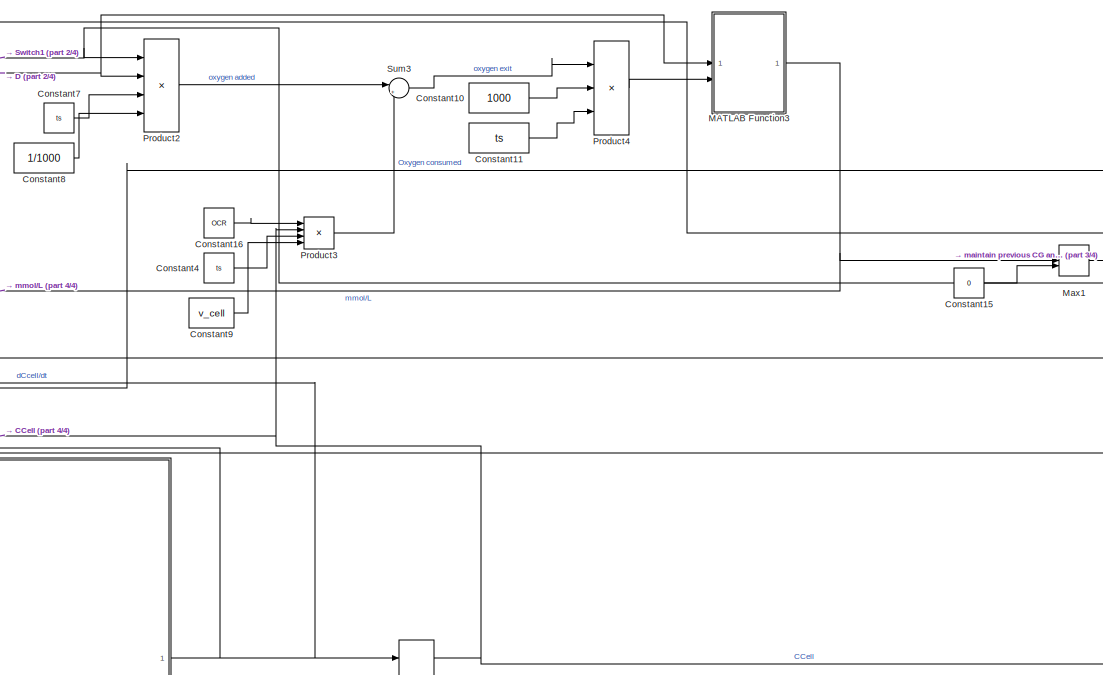
[diagram: Digital Reactor - part 1/4, center side, full height]
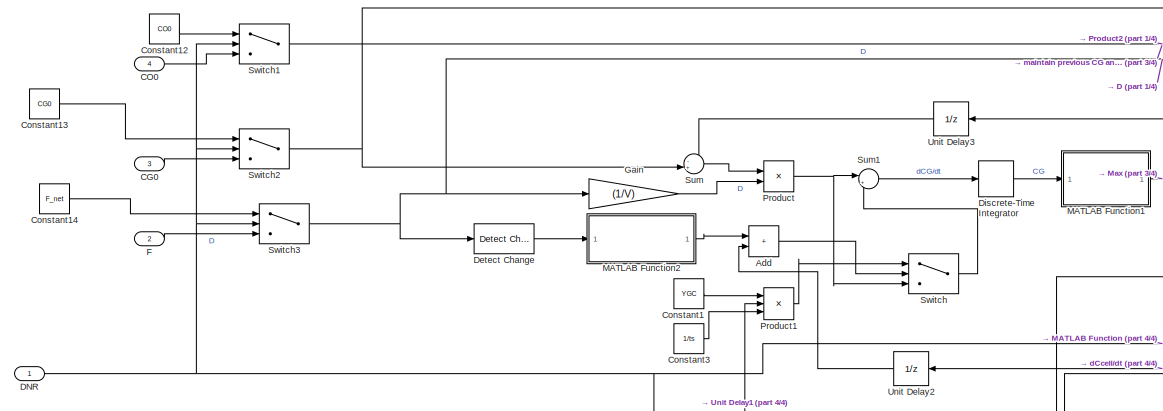
[diagram: Digital Reactor - part 2/4, top left region]
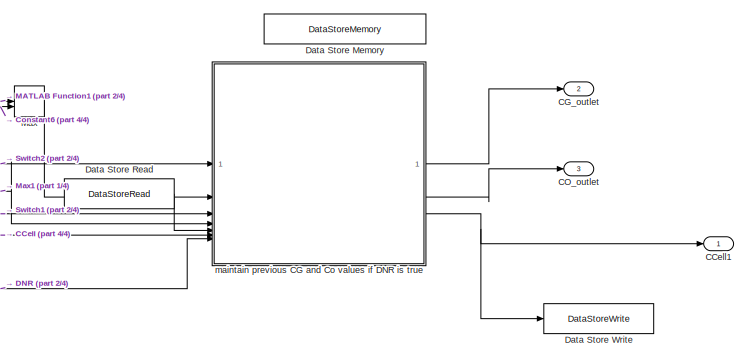
[diagram: Digital Reactor - part 3/4, top right region]
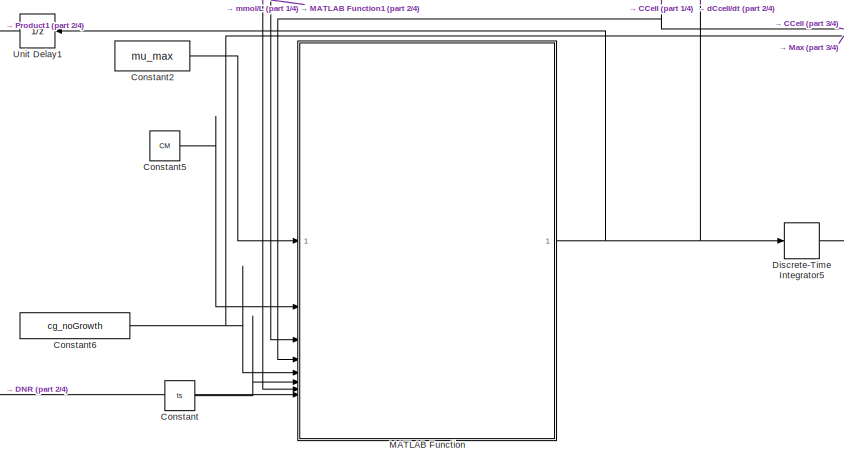
[diagram: Digital Reactor - part 4/4, bottom center region]
BLOCK [SubSystem] Digital Reactor
  TreatAsAtomicUnit = on
BLOCK [Sum] Digital Reactor/Add
  IconShape = rectangular
BLOCK [Outport] Digital Reactor/CCell1
BLOCK [Inport] Digital Reactor/CG0
  Port = 3
BLOCK [Outport] Digital Reactor/CG_outlet
  Port = 2
BLOCK [Inport] Digital Reactor/CO0
  Port = 4
BLOCK [Outport] Digital Reactor/CO_outlet
  Port = 3
BLOCK [Constant] Digital Reactor/Constant
  Value = ts
BLOCK [Constant] Digital Reactor/Constant1
  Value = YGC
BLOCK [Constant] Digital Reactor/Constant10
  Value = 1000
BLOCK [Constant] Digital Reactor/Constant11
  Value = ts
BLOCK [Constant] Digital Reactor/Constant12
  Value = CO0
BLOCK [Constant] Digital Reactor/Constant13
  Value = CG0
BLOCK [Constant] Digital Reactor/Constant14
  Value = F_net
BLOCK [Constant] Digital Reactor/Constant15
  Value = 0
BLOCK [Constant] Digital Reactor/Constant16
  Value = OCR
BLOCK [Constant] Digital Reactor/Constant2
  Value = mu_max
BLOCK [Constant] Digital Reactor/Constant3
  Value = 1/ts
BLOCK [Constant] Digital Reactor/Constant4
  Value = ts
BLOCK [Constant] Digital Reactor/Constant5
  Value = CM
BLOCK [Constant] Digital Reactor/Constant6
  Value = cg_noGrowth
BLOCK [Constant] Digital Reactor/Constant7
  Value = ts
BLOCK [Constant] Digital Reactor/Constant8
  Value = 1/1000
BLOCK [Constant] Digital Reactor/Constant9
  Value = v_cell
BLOCK [Inport] Digital Reactor/DNR
BLOCK [DataStoreMemory] Digital Reactor/Data Store Memory
  DataStoreName = Ccell_dnr
  InitialValue = Ccell0
  ShowAdditionalParam = off
  WriteAfterWriteMsg = warning
BLOCK [DataStoreRead] Digital Reactor/Data Store Read
  DataStoreName = Ccell_dnr
  IndexOptions = Index vector (dialog)
  Indices = 1
  OutputSizes = 1
BLOCK [DataStoreWrite] Digital Reactor/Data Store Write
  DataStoreName = Ccell_dnr
  IndexOptions = Index vector (dialog)
  Indices = 1
  OutputSizes = 1
BLOCK [Reference] Digital Reactor/Detect Change  REF=simulink/Logic and Bit
Operations/Detect
Change
  SourceBlock = simulink/Logic and Bit\nOperations/Detect\nChange
  SourceType = Detect Change
BLOCK [DiscreteIntegrator] Digital Reactor/Discrete-Time Integrator
  ICPrevOutput = DiscIntNeverNeededParam
  ICPrevScaledInput = DiscIntNeverNeededParam
  InitialCondition = CG0
  InitialConditionSetting = Auto
  Priority = 0
  SampleTime = ts
BLOCK [DiscreteIntegrator] Digital Reactor/Discrete-Time Integrator5
  ICPrevOutput = DiscIntNeverNeededParam
  ICPrevScaledInput = DiscIntNeverNeededParam
  InitialCondition = Ccell0
  InitialConditionSetting = Auto
  IntegratorMethod = Accumulation: Forward Euler
  SampleTime = ts
BLOCK [Inport] Digital Reactor/F
  Port = 2
BLOCK [Gain] Digital Reactor/Gain
  Gain = (1/V)
BLOCK [SubSystem] Digital Reactor/MATLAB Function
  ErrorFcn = Stateflow.Translate.translate
  PermitHierarchicalResolution = ExplicitOnly
  Priority = 0
  SFBlockType = MATLAB Function
  TreatAsAtomicUnit = on
BLOCK [Demux] Digital Reactor/MATLAB Function/ Demux 
  Outputs = 1
BLOCK [S-Function] Digital Reactor/MATLAB Function/ SFunction 
  EnableBusSupport = on
  FunctionName = sf_sfun
  PortCounts = [8 2]
  SFcnIsStateOwnerBlock = off
  SFunctionDeploymentMode = off
  Tag = Stateflow S-Function 13
BLOCK [Terminator] Digital Reactor/MATLAB Function/ Terminator 
BLOCK [Inport] Digital Reactor/MATLAB Function/CG
  Port = 3
BLOCK [Inport] Digital Reactor/MATLAB Function/CM
  Port = 2
BLOCK [Inport] Digital Reactor/MATLAB Function/CO
  Port = 7
BLOCK [Inport] Digital Reactor/MATLAB Function/Ccell
  Port = 4
BLOCK [Inport] Digital Reactor/MATLAB Function/cgNoGrowth
  Port = 5
BLOCK [Outport] Digital Reactor/MATLAB Function/dCcell_dt
BLOCK [Inport] Digital Reactor/MATLAB Function/dnr
  Port = 8
BLOCK [Inport] Digital Reactor/MATLAB Function/mu_max
BLOCK [Inport] Digital Reactor/MATLAB Function/ts
  Port = 6
BLOCK [SubSystem] Digital Reactor/MATLAB Function1
  ErrorFcn = Stateflow.Translate.translate
  LibrarySourceBlock = simulink/User-Defined\nFunctions/MATLAB Function
  PermitHierarchicalResolution = ExplicitOnly
  SFBlockType = MATLAB Function
  TreatAsAtomicUnit = on
BLOCK [Demux] Digital Reactor/MATLAB Function1/ Demux 
  Outputs = 1
BLOCK [S-Function] Digital Reactor/MATLAB Function1/ SFunction 
  EnableBusSupport = on
  FunctionName = sf_sfun
  PortCounts = [1 2]
  SFcnIsStateOwnerBlock = off
  SFunctionDeploymentMode = off
  Tag = Stateflow S-Function 18
BLOCK [Terminator] Digital Reactor/MATLAB Function1/ Terminator 
BLOCK [Inport] Digital Reactor/MATLAB Function1/in
BLOCK [Outport] Digital Reactor/MATLAB Function1/out
BLOCK [SubSystem] Digital Reactor/MATLAB Function2
  ErrorFcn = Stateflow.Translate.translate
  PermitHierarchicalResolution = ExplicitOnly
  SFBlockType = MATLAB Function
  TreatAsAtomicUnit = on
BLOCK [Demux] Digital Reactor/MATLAB Function2/ Demux 
  Outputs = 1
BLOCK [S-Function] Digital Reactor/MATLAB Function2/ SFunction 
  EnableBusSupport = on
  FunctionName = sf_sfun
  PortCounts = [1 2]
  SFcnIsStateOwnerBlock = off
  SFunctionDeploymentMode = off
  Tag = Stateflow S-Function 22
BLOCK [Terminator] Digital Reactor/MATLAB Function2/ Terminator 
BLOCK [Outport] Digital Reactor/MATLAB Function2/num
BLOCK [Inport] Digital Reactor/MATLAB Function2/statement
BLOCK [SubSystem] Digital Reactor/MATLAB Function3
  ErrorFcn = Stateflow.Translate.translate
  LibrarySourceBlock = simulink/User-Defined\nFunctions/MATLAB Function
  PermitHierarchicalResolution = ExplicitOnly
  SFBlockType = MATLAB Function
  TreatAsAtomicUnit = on
BLOCK [Demux] Digital Reactor/MATLAB Function3/ Demux 
  Outputs = 1
BLOCK [S-Function] Digital Reactor/MATLAB Function3/ SFunction 
  EnableBusSupport = on
  FunctionName = sf_sfun
  PortCounts = [2 2]
  SFcnIsStateOwnerBlock = off
  SFunctionDeploymentMode = off
  Tag = Stateflow S-Function 51
BLOCK [Terminator] Digital Reactor/MATLAB Function3/ Terminator 
BLOCK [Inport] Digital Reactor/MATLAB Function3/divide
BLOCK [Inport] Digital Reactor/MATLAB Function3/mult
  Port = 2
BLOCK [Outport] Digital Reactor/MATLAB Function3/out
BLOCK [MinMax] Digital Reactor/Max
  Function = max
  Inputs = 2
BLOCK [MinMax] Digital Reactor/Max1
  Function = max
  Inputs = 2
BLOCK [Product] Digital Reactor/Product
BLOCK [Product] Digital Reactor/Product1
  Inputs = 3
BLOCK [Product] Digital Reactor/Product2
  Inputs = 4
BLOCK [Product] Digital Reactor/Product3
  Inputs = 4
BLOCK [Product] Digital Reactor/Product4
  Inputs = 3
BLOCK [Sum] Digital Reactor/Sum
  Inputs = -+|
BLOCK [Sum] Digital Reactor/Sum1
  Inputs = |+-
BLOCK [Sum] Digital Reactor/Sum3
  Inputs = |+-
BLOCK [Switch] Digital Reactor/Switch
  Criteria = u2 > Threshold
  InputSameDT = off
  SaturateOnIntegerOverflow = off
BLOCK [Switch] Digital Reactor/Switch1
  Criteria = u2 > Threshold
  InputSameDT = off
  SaturateOnIntegerOverflow = off
  Threshold = .5
BLOCK [Switch] Digital Reactor/Switch2
  Criteria = u2 > Threshold
  InputSameDT = off
  SaturateOnIntegerOverflow = off
  Threshold = .5
BLOCK [Switch] Digital Reactor/Switch3
  Criteria = u2 > Threshold
  InputSameDT = off
  SaturateOnIntegerOverflow = off
  Threshold = .5
BLOCK [UnitDelay] Digital Reactor/Unit Delay1
  HasFrameUpgradeWarning = on
  SampleTime = -1
BLOCK [UnitDelay] Digital Reactor/Unit Delay2
  HasFrameUpgradeWarning = on
  SampleTime = -1
BLOCK [UnitDelay] Digital Reactor/Unit Delay3
  HasFrameUpgradeWarning = on
  InitialCondition = CG0
  SampleTime = -1
BLOCK [SubSystem] Digital Reactor/maintain previous CG and Co values if DNR is true
  ErrorFcn = Stateflow.Translate.translate
  LibrarySourceBlock = simulink/User-Defined\nFunctions/MATLAB Function
  PermitHierarchicalResolution = ExplicitOnly
  SFBlockType = MATLAB Function
  TreatAsAtomicUnit = on
BLOCK [Demux] Digital Reactor/maintain previous CG and Co values if DNR is true/ Demux 
  Outputs = 1
BLOCK [S-Function] Digital Reactor/maintain previous CG and Co values if DNR is true/ SFunction 
  EnableBusSupport = on
  FunctionName = sf_sfun
  PortCounts = [7 4]
  SFcnIsStateOwnerBlock = off
  SFunctionDeploymentMode = off
  Tag = Stateflow S-Function 9
BLOCK [Terminator] Digital Reactor/maintain previous CG and Co values if DNR is true/ Terminator 
BLOCK [Outport] Digital Reactor/maintain previous CG and Co values if DNR is true/CG_out
BLOCK [Outport] Digital Reactor/maintain previous CG and Co values if DNR is true/CO_out
  Port = 2
BLOCK [Outport] Digital Reactor/maintain previous CG and Co values if DNR is true/Ccell_out
  Port = 3
BLOCK [Inport] Digital Reactor/maintain previous CG and Co values if DNR is true/doNotRun
  Port = 7
BLOCK [Inport] Digital Reactor/maintain previous CG and Co values if DNR is true/newCG
  Port = 2
BLOCK [Inport] Digital Reactor/maintain previous CG and Co values if DNR is true/newCO
  Port = 4
BLOCK [Inport] Digital Reactor/maintain previous CG and Co values if DNR is true/newCcell
  Port = 6
BLOCK [Inport] Digital Reactor/maintain previous CG and Co values if DNR is true/oldCG
BLOCK [Inport] Digital Reactor/maintain previous CG and Co values if DNR is true/oldCO
  Port = 3
BLOCK [Inport] Digital Reactor/maintain previous CG and Co values if DNR is true/oldCcell
  Port = 5
BLOCK [Reference] Fault Codes  REF=sldrtlib/Internet of Things/ThingSpeak Output
  SourceBlock = sldrtlib/Internet of Things/ThingSpeak Output
  SourceType = Simulink Desktop Real-Time ThingSpeak Output
BLOCK [Reference] Fresh Flowrate Intended  REF=sldrtlib/Internet of Things/ThingSpeak Input
  SourceBlock = sldrtlib/Internet of Things/ThingSpeak Input
  SourceType = Simulink Desktop Real-Time ThingSpeak Input
BLOCK [Constant] Fresh Medium Glucose Concentration
  Value = CG0
BLOCK [Constant] Fresh Medium Oxygen Concentration
  Value = CO0
BLOCK [Gain] Gain
  Gain = v_cell
BLOCK [Scope] Glucose Concentrations
  Floating = off
  NumInputPorts = 2
  ScopeSpecificationString = Simulink.scopes.TimeScopeBlockCfg('CurrentConfiguration', extmgr.ConfigurationSet(extmgr.Configuration('Core','General UI',true),extmgr.Configuration('Core','Source UI',true),extmgr.Configuration('Sources','WiredSimulink',true,'DataLoggingVariableName','ScopeData2'),extmgr.Configuration('Visuals','Time Domain',true,'SerializedDisplays',{struct('MinYLimReal','-24.39453','MaxYLimReal','219.55076','Y...<+1446ch>
BLOCK [Constant] Initial Cell Concentration
  Value = Ccell0
BLOCK [Scope] Oxygen Concentrations
  Floating = off
  NumInputPorts = 2
  ScopeSpecificationString = Simulink.scopes.TimeScopeBlockCfg('CurrentConfiguration', extmgr.ConfigurationSet(extmgr.Configuration('Core','General UI',true),extmgr.Configuration('Core','Source UI',true),extmgr.Configuration('Sources','WiredSimulink',true,'DataLoggingVariableName','ScopeData3'),extmgr.Configuration('Visuals','Time Domain',true,'SerializedDisplays',{struct('MinYLimReal','-0.03696','MaxYLimReal','0.28295','YLab...<+1436ch>
BLOCK [Constant] Reactor Volume
  Value = V
BLOCK [Reference] Recycle Flowrate Intended  REF=sldrtlib/Internet of Things/ThingSpeak Input
  SourceBlock = sldrtlib/Internet of Things/ThingSpeak Input
  SourceType = Simulink Desktop Real-Time ThingSpeak Input
BLOCK [Reference] Runtime  REF=sldrtlib/Internet of Things/ThingSpeak Input
  SourceBlock = sldrtlib/Internet of Things/ThingSpeak Input
  SourceType = Simulink Desktop Real-Time ThingSpeak Input
BLOCK [Reference] SPR cell count estimation  REF=sldrtlib/Internet of Things/ThingSpeak Input
  SourceBlock = sldrtlib/Internet of Things/ThingSpeak Input
  SourceType = Simulink Desktop Real-Time ThingSpeak Input
BLOCK [Reference] Sensor Glucose concentration  REF=sldrtlib/Internet of Things/ThingSpeak Input
  SourceBlock = sldrtlib/Internet of Things/ThingSpeak Input
  SourceType = Simulink Desktop Real-Time ThingSpeak Input
BLOCK [Reference] Sensor O2 concentration   REF=sldrtlib/Internet of Things/ThingSpeak Input
  SourceBlock = sldrtlib/Internet of Things/ThingSpeak Input
  SourceType = Simulink Desktop Real-Time ThingSpeak Input
BLOCK [Reference] Simulated Glucose Concentration  REF=sldrtlib/Internet of Things/ThingSpeak Output
  SourceBlock = sldrtlib/Internet of Things/ThingSpeak Output
  SourceType = Simulink Desktop Real-Time ThingSpeak Output
BLOCK [Reference] Simulated Oxygen Concentration  REF=sldrtlib/Internet of Things/ThingSpeak Output
  SourceBlock = sldrtlib/Internet of Things/ThingSpeak Output
  SourceType = Simulink Desktop Real-Time ThingSpeak Output
BLOCK [Reference] Simulation Pace  REF=aerolibanimutils/Simulation Pace
  AttributesFormatString = %<SleepMode>\n%<SimulationPace> sec/sec
  SourceBlock = aerolibanimutils/Simulation Pace
  SourceType = Simulation Pace
BLOCK [Clock] Simulation Time
BLOCK [SubSystem] Subsystem
BLOCK [DataStoreRead] Subsystem/Data Store Read
  DataStoreName = aliveTime
  IndexOptions = Index vector (dialog)
  Indices = 1
  OutputSizes = 1
BLOCK [DataStoreWrite] Subsystem/Data Store Write
  DataStoreName = aliveTime
  IndexOptions = Index vector (dialog)
  Indices = 1
  OutputSizes = 1
BLOCK [Reference] Subsystem/Detect Increase  REF=simulink/Logic and Bit
Operations/Detect
Increase
  SourceBlock = simulink/Logic and Bit\nOperations/Detect\nIncrease
  SourceType = Detect Increase
BLOCK [SubSystem] Subsystem/MATLAB Function
  ErrorFcn = Stateflow.Translate.translate
  LibrarySourceBlock = simulink/User-Defined\nFunctions/MATLAB Function
  PermitHierarchicalResolution = ExplicitOnly
  SFBlockType = MATLAB Function
  TreatAsAtomicUnit = on
BLOCK [Demux] Subsystem/MATLAB Function/ Demux 
  Outputs = 1
BLOCK [S-Function] Subsystem/MATLAB Function/ SFunction 
  EnableBusSupport = on
  FunctionName = sf_sfun
  PortCounts = [3 3]
  SFcnIsStateOwnerBlock = off
  SFunctionDeploymentMode = off
  Tag = Stateflow S-Function 4
BLOCK [Terminator] Subsystem/MATLAB Function/ Terminator 
BLOCK [Outport] Subsystem/MATLAB Function/aliveTime
  Port = 2
BLOCK [Inport] Subsystem/MATLAB Function/aliveTime_mem
  Port = 3
BLOCK [Outport] Subsystem/MATLAB Function/doNotRun
BLOCK [Inport] Subsystem/MATLAB Function/time
  Port = 2
BLOCK [Inport] Subsystem/MATLAB Function/u
BLOCK [SubSystem] Subsystem/MATLAB Function1
  ErrorFcn = Stateflow.Translate.translate
  LibrarySourceBlock = simulink/User-Defined\nFunctions/MATLAB Function
  PermitHierarchicalResolution = ExplicitOnly
  SFBlockType = MATLAB Function
  TreatAsAtomicUnit = on
BLOCK [Demux] Subsystem/MATLAB Function1/ Demux 
  Outputs = 1
BLOCK [S-Function] Subsystem/MATLAB Function1/ SFunction 
  EnableBusSupport = on
  FunctionName = sf_sfun
  PortCounts = [2 2]
  SFcnIsStateOwnerBlock = off
  SFunctionDeploymentMode = off
  Tag = Stateflow S-Function 8
BLOCK [Terminator] Subsystem/MATLAB Function1/ Terminator 
BLOCK [Inport] Subsystem/MATLAB Function1/change_detected
  Port = 2
BLOCK [Outport] Subsystem/MATLAB Function1/detection_dnr
BLOCK [Inport] Subsystem/MATLAB Function1/reactor_dnr
BLOCK [Reference] Subsystem/Ramp  REF=simulink/Sources/Ramp
  SourceBlock = simulink/Sources/Ramp
  SourceType = Ramp
BLOCK [Outport] Subsystem/doNotRun_detection
  Port = 2
BLOCK [Outport] Subsystem/doNotRun_reactor
BLOCK [Inport] Subsystem/thingspeak time
BLOCK [SubSystem] Subsystem1
BLOCK [Inport] Subsystem1/Code1
BLOCK [Inport] Subsystem1/Code2
  Port = 2
BLOCK [Inport] Subsystem1/Code3
  Port = 3
BLOCK [Inport] Subsystem1/Code4
  Port = 4
BLOCK [Inport] Subsystem1/Code5
  Port = 5
BLOCK [Inport] Subsystem1/Code6
  Port = 6
BLOCK [Inport] Subsystem1/Code7
  Port = 7
BLOCK [Scope] Subsystem1/Faults
  Floating = off
  NumInputPorts = 8
  ScopeSpecificationString = Simulink.scopes.TimeScopeBlockCfg('CurrentConfiguration', extmgr.ConfigurationSet(extmgr.Configuration('Core','General UI',true),extmgr.Configuration('Core','Source UI',true),extmgr.Configuration('Sources','WiredSimulink',true,'DataLoggingVariableName','ScopeData6'),extmgr.Configuration('Visuals','Time Domain',true,'SerializedDisplays',{struct('MinYLimReal','-0.875','MaxYLimReal','7.875','YLabelRe...<+1405ch>
BLOCK [SubSystem] Subsystem1/MATLAB Function
  ErrorFcn = Stateflow.Translate.translate
  LibrarySourceBlock = simulink/User-Defined\nFunctions/MATLAB Function
  PermitHierarchicalResolution = ExplicitOnly
  SFBlockType = MATLAB Function
  TreatAsAtomicUnit = on
BLOCK [Demux] Subsystem1/MATLAB Function/ Demux 
  Outputs = 1
BLOCK [S-Function] Subsystem1/MATLAB Function/ SFunction 
  EnableBusSupport = on
  FunctionName = sf_sfun
  PortCounts = [7 2]
  SFcnIsStateOwnerBlock = off
  SFunctionDeploymentMode = off
  Tag = Stateflow S-Function 17
BLOCK [Terminator] Subsystem1/MATLAB Function/ Terminator 
BLOCK [Inport] Subsystem1/MATLAB Function/code1
BLOCK [Inport] Subsystem1/MATLAB Function/code2
  Port = 2
BLOCK [Inport] Subsystem1/MATLAB Function/code3
  Port = 3
BLOCK [Inport] Subsystem1/MATLAB Function/code4
  Port = 4
BLOCK [Inport] Subsystem1/MATLAB Function/code5
  Port = 5
BLOCK [Inport] Subsystem1/MATLAB Function/code6
  Port = 6
BLOCK [Inport] Subsystem1/MATLAB Function/code7
  Port = 7
BLOCK [Outport] Subsystem1/MATLAB Function/fullCode
BLOCK [Inport] Subsystem1/doNotRun_detection
  Port = 8
BLOCK [Outport] Subsystem1/fullCode
BLOCK [ToFile] To File
  Filename = DTR_fakeo2fail_t150_run2
BLOCK [UnitDelay] Unit Delay
  HasFrameUpgradeWarning = on
  InitialCondition = F_fresh_start
  SampleTime = -1
BLOCK [UnitDelay] Unit Delay1
  HasFrameUpgradeWarning = on
  InitialCondition = CO0
  SampleTime = -1
BLOCK [UnitDelay] Unit Delay2
  HasFrameUpgradeWarning = on
  InitialCondition = F_recycle_start
  SampleTime = -1
BLOCK [UnitDelay] Unit Delay3
  HasFrameUpgradeWarning = on
  InitialCondition = CG0
  SampleTime = -1
BLOCK [Concatenate] Vector Concatenate
  NumInputs = 10
BLOCK [Scope] flowrates
  Floating = off
  NumInputPorts = 2
  ScopeSpecificationString = Simulink.scopes.TimeScopeBlockCfg('CurrentConfiguration', extmgr.ConfigurationSet(extmgr.Configuration('Core','General UI',true),extmgr.Configuration('Core','Source UI',true),extmgr.Configuration('Sources','WiredSimulink',true,'DataLoggingVariableName','ScopeData7'),extmgr.Configuration('Visuals','Time Domain',true,'SerializedDisplays',{struct('MinYLimReal','-35.85','MaxYLimReal','370.65','YLabelR...<+1430ch>
BLOCK [SubSystem] fresh initializer1
BLOCK [Constant] fresh initializer1/Constant
  Value = F_fresh_start
BLOCK [SubSystem] fresh initializer1/MATLAB Function
  ErrorFcn = Stateflow.Translate.translate
  LibrarySourceBlock = simulink/User-Defined\nFunctions/MATLAB Function
  PermitHierarchicalResolution = ExplicitOnly
  SFBlockType = MATLAB Function
  TreatAsAtomicUnit = on
BLOCK [Demux] fresh initializer1/MATLAB Function/ Demux 
  Outputs = 1
BLOCK [S-Function] fresh initializer1/MATLAB Function/ SFunction 
  EnableBusSupport = on
  FunctionName = sf_sfun
  PortCounts = [3 2]
  SFcnIsStateOwnerBlock = off
  SFunctionDeploymentMode = off
  Tag = Stateflow S-Function 6
BLOCK [Terminator] fresh initializer1/MATLAB Function/ Terminator 
BLOCK [Inport] fresh initializer1/MATLAB Function/initial_val
  Port = 2
BLOCK [Inport] fresh initializer1/MATLAB Function/input
BLOCK [Outport] fresh initializer1/MATLAB Function/output
BLOCK [Inport] fresh initializer1/MATLAB Function/time
  Port = 3
BLOCK [Reference] fresh initializer1/Ramp  REF=simulink/Sources/Ramp
  SourceBlock = simulink/Sources/Ramp
  SourceType = Ramp
BLOCK [Inport] fresh initializer1/input
BLOCK [Outport] fresh initializer1/output
BLOCK [SubSystem] recycle initializer
BLOCK [Constant] recycle initializer/Constant
  Value = F_recycle_start
BLOCK [SubSystem] recycle initializer/MATLAB Function
  ErrorFcn = Stateflow.Translate.translate
  LibrarySourceBlock = simulink/User-Defined\nFunctions/MATLAB Function
  PermitHierarchicalResolution = ExplicitOnly
  SFBlockType = MATLAB Function
  TreatAsAtomicUnit = on
BLOCK [Demux] recycle initializer/MATLAB Function/ Demux 
  Outputs = 1
BLOCK [S-Function] recycle initializer/MATLAB Function/ SFunction 
  EnableBusSupport = on
  FunctionName = sf_sfun
  PortCounts = [3 2]
  SFcnIsStateOwnerBlock = off
  SFunctionDeploymentMode = off
  Tag = Stateflow S-Function 5
BLOCK [Terminator] recycle initializer/MATLAB Function/ Terminator 
BLOCK [Inport] recycle initializer/MATLAB Function/initial_val
  Port = 2
BLOCK [Inport] recycle initializer/MATLAB Function/input
BLOCK [Outport] recycle initializer/MATLAB Function/output
BLOCK [Inport] recycle initializer/MATLAB Function/time
  Port = 3
BLOCK [Reference] recycle initializer/Ramp  REF=simulink/Sources/Ramp
  SourceBlock = simulink/Sources/Ramp
  SourceType = Ramp
BLOCK [Inport] recycle initializer/input
BLOCK [Outport] recycle initializer/output
BLOCK [SubSystem] recycle or fresh medium1
  ErrorFcn = Stateflow.Translate.translate
  LibrarySourceBlock = simulink/User-Defined\nFunctions/MATLAB Function
  PermitHierarchicalResolution = ExplicitOnly
  SFBlockType = MATLAB Function
  TreatAsAtomicUnit = on
BLOCK [Demux] recycle or fresh medium1/ Demux 
  Outputs = 1
BLOCK [S-Function] recycle or fresh medium1/ SFunction 
  EnableBusSupport = on
  FunctionName = sf_sfun
  PortCounts = [4 3]
  SFcnIsStateOwnerBlock = off
  SFunctionDeploymentMode = off
  Tag = Stateflow S-Function 7
BLOCK [Terminator] recycle or fresh medium1/ Terminator 
BLOCK [Inport] recycle or fresh medium1/CG0
  Port = 3
BLOCK [Outport] recycle or fresh medium1/CG_inlet
BLOCK [Inport] recycle or fresh medium1/CG_recycled
  Port = 4
BLOCK [Inport] recycle or fresh medium1/fresh_flowrate
BLOCK [Inport] recycle or fresh medium1/recycled_flowrate
  Port = 2
BLOCK [Outport] recycle or fresh medium1/total_flowrate
  Port = 2
ANNOTATION (root): Faul Code Generator
ANNOTATION (root): ThingSpeak Inputs from Reactor
ANNOTATION (root): Constant Input Parameters
ANNOTATION (root): DTR-CCBR Synchonizer
ANNOTATION (root): ThingSpeak Outputs to Reactor
ANNOTATION (root): Scopes
ANNOTATION (root): Fluid Draw Selector
ANNOTATION (root): Digital Twin Reactor
ANNOTATION (root): Attack and Fault Detection
LINE Attack and Fault Detection System/Add:1 -> Attack and Fault Detection System/Recycle Pump Fault Detection:3
NET Attack and Fault Detection System/CG_predicted1:1 -> Attack and Fault Detection System/Glucose Abnormally Low Noise Detection:2, Attack and Fault Detection System/Glucose Deviation Detection:1, Attack and Fault Detection System/Glucose Fault Detection:2
NET Attack and Fault Detection System/CG_sensor1:1 -> Attack and Fault Detection System/Fresh Pump Fault Detection:2, Attack and Fault Detection System/Glucose Abnormally Low Noise Detection:1, Attack and Fault Detection System/Glucose Deviation Detection:2, Attack and Fault Detection System/Glucose Fault Detection:1
NET Attack and Fault Detection System/CO_predicted:1 -> Attack and Fault Detection System/Oxygen Abnormally Low Noise Detection1:2, Attack and Fault Detection System/Oxygen Deviation Detection1:1
NET Attack and Fault Detection System/CO_sensor:1 -> Attack and Fault Detection System/Oxygen Abnormally Low Noise Detection1:1, Attack and Fault Detection System/Oxygen Deviation Detection1:2, Attack and Fault Detection System/Oxygen Sensor Failure Detection:1, Attack and Fault Detection System/Recycle Pump Fault Detection:1
LINE Attack and Fault Detection System/Constant2:1 -> Attack and Fault Detection System/MATLAB Function3:4
LINE Attack and Fault Detection System/Constant4:1 -> Attack and Fault Detection System/Steady State Detection System1:2
LINE Attack and Fault Detection System/Constant5:1 -> Attack and Fault Detection System/Steady State Detection System1:3
LINE Attack and Fault Detection System/Constant:1 -> Attack and Fault Detection System/MATLAB Function2:4
LINE Attack and Fault Detection System/Fresh Pump Fault Detection/Constant1:1 -> Attack and Fault Detection System/Fresh Pump Fault Detection/MATLAB Function:5
LINE Attack and Fault Detection System/Fresh Pump Fault Detection/Constant:1 -> Attack and Fault Detection System/Fresh Pump Fault Detection/MATLAB Function:4
LINE Attack and Fault Detection System/Fresh Pump Fault Detection/MATLAB Function:1 -> Attack and Fault Detection System/Fresh Pump Fault Detection/noFreshResponse:1
NET Attack and Fault Detection System/Fresh Pump Fault Detection/Moving Average:1 -> Attack and Fault Detection System/Fresh Pump Fault Detection/MATLAB Function:3, Attack and Fault Detection System/Fresh Pump Fault Detection/g_rolling_avg:1
LINE Attack and Fault Detection System/Fresh Pump Fault Detection/dnr:1 -> Attack and Fault Detection System/Fresh Pump Fault Detection/MATLAB Function:1
LINE Attack and Fault Detection System/Fresh Pump Fault Detection/fresh flowrate commanded:1 -> Attack and Fault Detection System/Fresh Pump Fault Detection/MATLAB Function:2
LINE Attack and Fault Detection System/Fresh Pump Fault Detection/glucose sensor concentration rolling average:1 -> Attack and Fault Detection System/Fresh Pump Fault Detection/Moving Average:1
NET Attack and Fault Detection System/Fresh Pump Fault Detection:1 -> Attack and Fault Detection System/Gain5:1, Attack and Fault Detection System/Pump Failures:3
LINE Attack and Fault Detection System/Fresh Pump Fault Detection:2 -> Attack and Fault Detection System/Pump Failures:4
LINE Attack and Fault Detection System/Gain1:1 -> Attack and Fault Detection System/GC_failure_faultCode:1
LINE Attack and Fault Detection System/Gain2:1 -> Attack and Fault Detection System/recycle_failure_faultCode:1
LINE Attack and Fault Detection System/Gain3:1 -> Attack and Fault Detection System/CG_prob:1
LINE Attack and Fault Detection System/Gain4:1 -> Attack and Fault Detection System/CG_prob:3
LINE Attack and Fault Detection System/Gain5:1 -> Attack and Fault Detection System/fresh_failure_faultCode:1
LINE Attack and Fault Detection System/Gain6:1 -> Attack and Fault Detection System/GC_disturbance_detected:1
LINE Attack and Fault Detection System/Gain7:1 -> Attack and Fault Detection System/o2_disturbance_detected:1
LINE Attack and Fault Detection System/Gain8:1 -> Attack and Fault Detection System/system_ompromised_faultCode:1
LINE Attack and Fault Detection System/Gain:1 -> Attack and Fault Detection System/O2_failure_faultCode:1
LINE Attack and Fault Detection System/Glucose Abnormally Low Noise Detection/Constant6:1 -> Attack and Fault Detection System/Glucose Abnormally Low Noise Detection/MATLAB Function3:3
LINE Attack and Fault Detection System/Glucose Abnormally Low Noise Detection/Constant7:1 -> Attack and Fault Detection System/Glucose Abnormally Low Noise Detection/MATLAB Function3:4
LINE Attack and Fault Detection System/Glucose Abnormally Low Noise Detection/Data Store Read:1 -> Attack and Fault Detection System/Glucose Abnormally Low Noise Detection/MATLAB Function:3
LINE Attack and Fault Detection System/Glucose Abnormally Low Noise Detection/MATLAB Function1:1 -> Attack and Fault Detection System/Glucose Abnormally Low Noise Detection/Moving Standard Deviation:1
LINE Attack and Fault Detection System/Glucose Abnormally Low Noise Detection/MATLAB Function3:1 -> Attack and Fault Detection System/Glucose Abnormally Low Noise Detection/noiseSmall:1
NET Attack and Fault Detection System/Glucose Abnormally Low Noise Detection/MATLAB Function:1 -> Attack and Fault Detection System/Glucose Abnormally Low Noise Detection/MATLAB Function3:2, Attack and Fault Detection System/Glucose Abnormally Low Noise Detection/stdev:1
LINE Attack and Fault Detection System/Glucose Abnormally Low Noise Detection/MATLAB Function:2 -> Attack and Fault Detection System/Glucose Abnormally Low Noise Detection/MATLAB Function3:5
LINE Attack and Fault Detection System/Glucose Abnormally Low Noise Detection/Moving Standard Deviation:1 -> Attack and Fault Detection System/Glucose Abnormally Low Noise Detection/MATLAB Function:1
LINE Attack and Fault Detection System/Glucose Abnormally Low Noise Detection/Ramp:1 -> Attack and Fault Detection System/Glucose Abnormally Low Noise Detection/MATLAB Function:2
LINE Attack and Fault Detection System/Glucose Abnormally Low Noise Detection/Sum:1 -> Attack and Fault Detection System/Glucose Abnormally Low Noise Detection/MATLAB Function1:2
NET Attack and Fault Detection System/Glucose Abnormally Low Noise Detection/dnr:1 -> Attack and Fault Detection System/Glucose Abnormally Low Noise Detection/MATLAB Function1:1, Attack and Fault Detection System/Glucose Abnormally Low Noise Detection/MATLAB Function3:1
LINE Attack and Fault Detection System/Glucose Abnormally Low Noise Detection/sensor glucose value:1 -> Attack and Fault Detection System/Glucose Abnormally Low Noise Detection/Sum:2
LINE Attack and Fault Detection System/Glucose Abnormally Low Noise Detection/sim glucose value:1 -> Attack and Fault Detection System/Glucose Abnormally Low Noise Detection/Sum:1
NET Attack and Fault Detection System/Glucose Abnormally Low Noise Detection:1 -> Attack and Fault Detection System/Abnormally Low Glucose:1, Attack and Fault Detection System/MATLAB Function2:2, Attack and Fault Detection System/glucose ab_small:1
NET Attack and Fault Detection System/Glucose Abnormally Low Noise Detection:2 -> Attack and Fault Detection System/Abnormally Low Glucose:2, Attack and Fault Detection System/glucose stdev:1
LINE Attack and Fault Detection System/Glucose Deviation Detection/Constant1:1 -> Attack and Fault Detection System/Glucose Deviation Detection/MATLAB Function1:3
LINE Attack and Fault Detection System/Glucose Deviation Detection/Constant2:1 -> Attack and Fault Detection System/Glucose Deviation Detection/MATLAB Function1:4
LINE Attack and Fault Detection System/Glucose Deviation Detection/Constant:1 -> Attack and Fault Detection System/Glucose Deviation Detection/MATLAB Function:4
LINE Attack and Fault Detection System/Glucose Deviation Detection/MATLAB Function1:1 -> Attack and Fault Detection System/Glucose Deviation Detection/isDeviated:1
LINE Attack and Fault Detection System/Glucose Deviation Detection/MATLAB Function2:1 -> Attack and Fault Detection System/Glucose Deviation Detection/MATLAB Function:2
LINE Attack and Fault Detection System/Glucose Deviation Detection/MATLAB Function3:1 -> Attack and Fault Detection System/Glucose Deviation Detection/Moving Standard Deviation:1
NET Attack and Fault Detection System/Glucose Deviation Detection/MATLAB Function:1 -> Attack and Fault Detection System/Glucose Deviation Detection/MATLAB Function1:2, Attack and Fault Detection System/Glucose Deviation Detection/likelihood:1
LINE Attack and Fault Detection System/Glucose Deviation Detection/Moving Standard Deviation:1 -> Attack and Fault Detection System/Glucose Deviation Detection/MATLAB Function:3
NET Attack and Fault Detection System/Glucose Deviation Detection/Sensor g value:1 -> Attack and Fault Detection System/Glucose Deviation Detection/MATLAB Function3:2, Attack and Fault Detection System/Glucose Deviation Detection/Sum:1
LINE Attack and Fault Detection System/Glucose Deviation Detection/Simulated g value:1 -> Attack and Fault Detection System/Glucose Deviation Detection/Sum:2
LINE Attack and Fault Detection System/Glucose Deviation Detection/Sum:1 -> Attack and Fault Detection System/Glucose Deviation Detection/MATLAB Function2:2
NET Attack and Fault Detection System/Glucose Deviation Detection/dnr:1 -> Attack and Fault Detection System/Glucose Deviation Detection/MATLAB Function1:1, Attack and Fault Detection System/Glucose Deviation Detection/MATLAB Function2:1, Attack and Fault Detection System/Glucose Deviation Detection/MATLAB Function3:1, Attack and Fault Detection System/Glucose Deviation Detection/MATLAB Function:1
NET Attack and Fault Detection System/Glucose Deviation Detection:1 -> Attack and Fault Detection System/MATLAB Function2:3, Attack and Fault Detection System/glucose deviation:2
NET Attack and Fault Detection System/Glucose Deviation Detection:2 -> Attack and Fault Detection System/glucose deviation prob:1, Attack and Fault Detection System/glucose deviation:1
LINE Attack and Fault Detection System/Glucose Fault Detection/Constant6:1 -> Attack and Fault Detection System/Glucose Fault Detection/MATLAB Function3:3
LINE Attack and Fault Detection System/Glucose Fault Detection/Constant7:1 -> Attack and Fault Detection System/Glucose Fault Detection/MATLAB Function3:4
LINE Attack and Fault Detection System/Glucose Fault Detection/Data Store Read:1 -> Attack and Fault Detection System/Glucose Fault Detection/MATLAB Function:3
LINE Attack and Fault Detection System/Glucose Fault Detection/MATLAB Function1:1 -> Attack and Fault Detection System/Glucose Fault Detection/Moving Standard Deviation:1
LINE Attack and Fault Detection System/Glucose Fault Detection/MATLAB Function3:1 -> Attack and Fault Detection System/Glucose Fault Detection/isFailed:1
NET Attack and Fault Detection System/Glucose Fault Detection/MATLAB Function:1 -> Attack and Fault Detection System/Glucose Fault Detection/MATLAB Function3:2, Attack and Fault Detection System/Glucose Fault Detection/stdev:1
LINE Attack and Fault Detection System/Glucose Fault Detection/Moving Standard Deviation:1 -> Attack and Fault Detection System/Glucose Fault Detection/MATLAB Function:1
LINE Attack and Fault Detection System/Glucose Fault Detection/Ramp:1 -> Attack and Fault Detection System/Glucose Fault Detection/MATLAB Function:2
LINE Attack and Fault Detection System/Glucose Fault Detection/Sum:1 -> Attack and Fault Detection System/Glucose Fault Detection/MATLAB Function1:2
NET Attack and Fault Detection System/Glucose Fault Detection/dnr:1 -> Attack and Fault Detection System/Glucose Fault Detection/MATLAB Function1:1, Attack and Fault Detection System/Glucose Fault Detection/MATLAB Function3:1
LINE Attack and Fault Detection System/Glucose Fault Detection/sensor glucose value:1 -> Attack and Fault Detection System/Glucose Fault Detection/Sum:2
LINE Attack and Fault Detection System/Glucose Fault Detection/sim glucose value:1 -> Attack and Fault Detection System/Glucose Fault Detection/Sum:1
NET Attack and Fault Detection System/Glucose Fault Detection:1 -> Attack and Fault Detection System/MATLAB Function2:1, Attack and Fault Detection System/glucose fault detection:1
LINE Attack and Fault Detection System/Glucose Fault Detection:2 -> Attack and Fault Detection System/glucose fault detection:2
LINE Attack and Fault Detection System/MATLAB Function2:1 -> Attack and Fault Detection System/Gain1:1
LINE Attack and Fault Detection System/MATLAB Function2:2 -> Attack and Fault Detection System/Max1:1
LINE Attack and Fault Detection System/MATLAB Function2:3 -> Attack and Fault Detection System/Gain6:1
LINE Attack and Fault Detection System/MATLAB Function3:1 -> Attack and Fault Detection System/Gain:1
LINE Attack and Fault Detection System/MATLAB Function3:2 -> Attack and Fault Detection System/Max1:2
LINE Attack and Fault Detection System/MATLAB Function3:3 -> Attack and Fault Detection System/Max:2
LINE Attack and Fault Detection System/Max1:1 -> Attack and Fault Detection System/Gain8:1
LINE Attack and Fault Detection System/Max:1 -> Attack and Fault Detection System/Gain7:1
LINE Attack and Fault Detection System/Oxygen Abnormally Low Noise Detection1/Constant6:1 -> Attack and Fault Detection System/Oxygen Abnormally Low Noise Detection1/MATLAB Function3:3
LINE Attack and Fault Detection System/Oxygen Abnormally Low Noise Detection1/Constant7:1 -> Attack and Fault Detection System/Oxygen Abnormally Low Noise Detection1/MATLAB Function3:4
LINE Attack and Fault Detection System/Oxygen Abnormally Low Noise Detection1/Data Store Read:1 -> Attack and Fault Detection System/Oxygen Abnormally Low Noise Detection1/MATLAB Function:3
LINE Attack and Fault Detection System/Oxygen Abnormally Low Noise Detection1/MATLAB Function1:1 -> Attack and Fault Detection System/Oxygen Abnormally Low Noise Detection1/Moving Standard Deviation:1
LINE Attack and Fault Detection System/Oxygen Abnormally Low Noise Detection1/MATLAB Function3:1 -> Attack and Fault Detection System/Oxygen Abnormally Low Noise Detection1/noiseSmall:1
NET Attack and Fault Detection System/Oxygen Abnormally Low Noise Detection1/MATLAB Function:1 -> Attack and Fault Detection System/Oxygen Abnormally Low Noise Detection1/MATLAB Function3:2, Attack and Fault Detection System/Oxygen Abnormally Low Noise Detection1/stdev:1
LINE Attack and Fault Detection System/Oxygen Abnormally Low Noise Detection1/MATLAB Function:2 -> Attack and Fault Detection System/Oxygen Abnormally Low Noise Detection1/MATLAB Function3:5
LINE Attack and Fault Detection System/Oxygen Abnormally Low Noise Detection1/Moving Standard Deviation:1 -> Attack and Fault Detection System/Oxygen Abnormally Low Noise Detection1/MATLAB Function:1
LINE Attack and Fault Detection System/Oxygen Abnormally Low Noise Detection1/Ramp:1 -> Attack and Fault Detection System/Oxygen Abnormally Low Noise Detection1/MATLAB Function:2
LINE Attack and Fault Detection System/Oxygen Abnormally Low Noise Detection1/Sum:1 -> Attack and Fault Detection System/Oxygen Abnormally Low Noise Detection1/MATLAB Function1:2
NET Attack and Fault Detection System/Oxygen Abnormally Low Noise Detection1/dnr:1 -> Attack and Fault Detection System/Oxygen Abnormally Low Noise Detection1/MATLAB Function1:1, Attack and Fault Detection System/Oxygen Abnormally Low Noise Detection1/MATLAB Function3:1
LINE Attack and Fault Detection System/Oxygen Abnormally Low Noise Detection1/sensor o2 value:1 -> Attack and Fault Detection System/Oxygen Abnormally Low Noise Detection1/Sum:2
LINE Attack and Fault Detection System/Oxygen Abnormally Low Noise Detection1/sim o2 value:1 -> Attack and Fault Detection System/Oxygen Abnormally Low Noise Detection1/Sum:1
NET Attack and Fault Detection System/Oxygen Abnormally Low Noise Detection1:1 -> Attack and Fault Detection System/MATLAB Function3:2, Attack and Fault Detection System/oxygen ab_small:1, Attack and Fault Detection System/oxygen abnormally small noise:1
NET Attack and Fault Detection System/Oxygen Abnormally Low Noise Detection1:2 -> Attack and Fault Detection System/oxygen abnormally small noise:2, Attack and Fault Detection System/oxygen stdev:1
LINE Attack and Fault Detection System/Oxygen Deviation Detection1/Constant1:1 -> Attack and Fault Detection System/Oxygen Deviation Detection1/MATLAB Function1:3
LINE Attack and Fault Detection System/Oxygen Deviation Detection1/Constant2:1 -> Attack and Fault Detection System/Oxygen Deviation Detection1/MATLAB Function1:4
LINE Attack and Fault Detection System/Oxygen Deviation Detection1/Constant:1 -> Attack and Fault Detection System/Oxygen Deviation Detection1/MATLAB Function:4
LINE Attack and Fault Detection System/Oxygen Deviation Detection1/MATLAB Function1:1 -> Attack and Fault Detection System/Oxygen Deviation Detection1/isDeviated:1
LINE Attack and Fault Detection System/Oxygen Deviation Detection1/MATLAB Function2:1 -> Attack and Fault Detection System/Oxygen Deviation Detection1/Moving Standard Deviation:1
LINE Attack and Fault Detection System/Oxygen Deviation Detection1/MATLAB Function3:1 -> Attack and Fault Detection System/Oxygen Deviation Detection1/MATLAB Function:2
NET Attack and Fault Detection System/Oxygen Deviation Detection1/MATLAB Function:1 -> Attack and Fault Detection System/Oxygen Deviation Detection1/MATLAB Function1:2, Attack and Fault Detection System/Oxygen Deviation Detection1/likelihood:1
LINE Attack and Fault Detection System/Oxygen Deviation Detection1/Moving Standard Deviation:1 -> Attack and Fault Detection System/Oxygen Deviation Detection1/MATLAB Function:3
NET Attack and Fault Detection System/Oxygen Deviation Detection1/Sensor o2 value:1 -> Attack and Fault Detection System/Oxygen Deviation Detection1/MATLAB Function2:2, Attack and Fault Detection System/Oxygen Deviation Detection1/Sum:1
LINE Attack and Fault Detection System/Oxygen Deviation Detection1/Simulated o2 value:1 -> Attack and Fault Detection System/Oxygen Deviation Detection1/Sum:2
LINE Attack and Fault Detection System/Oxygen Deviation Detection1/Sum:1 -> Attack and Fault Detection System/Oxygen Deviation Detection1/MATLAB Function3:2
NET Attack and Fault Detection System/Oxygen Deviation Detection1/dnr:1 -> Attack and Fault Detection System/Oxygen Deviation Detection1/MATLAB Function1:1, Attack and Fault Detection System/Oxygen Deviation Detection1/MATLAB Function2:1, Attack and Fault Detection System/Oxygen Deviation Detection1/MATLAB Function3:1, Attack and Fault Detection System/Oxygen Deviation Detection1/MATLAB Function:1
NET Attack and Fault Detection System/Oxygen Deviation Detection1:1 -> Attack and Fault Detection System/MATLAB Function3:3, Attack and Fault Detection System/oxygen deviation:1
NET Attack and Fault Detection System/Oxygen Deviation Detection1:2 -> Attack and Fault Detection System/oxygen deviation prob:1, Attack and Fault Detection System/oxygen deviation:2
LINE Attack and Fault Detection System/Oxygen Sensor Failure Detection/Constant2:1 -> Attack and Fault Detection System/Oxygen Sensor Failure Detection/MATLAB Function2:4
LINE Attack and Fault Detection System/Oxygen Sensor Failure Detection/Constant3:1 -> Attack and Fault Detection System/Oxygen Sensor Failure Detection/MATLAB Function2:5
LINE Attack and Fault Detection System/Oxygen Sensor Failure Detection/Constant:1 -> Attack and Fault Detection System/Oxygen Sensor Failure Detection/MATLAB Function2:3
LINE Attack and Fault Detection System/Oxygen Sensor Failure Detection/MATLAB Function2:1 -> Attack and Fault Detection System/Oxygen Sensor Failure Detection/isFailed:1
LINE Attack and Fault Detection System/Oxygen Sensor Failure Detection/dnr:1 -> Attack and Fault Detection System/Oxygen Sensor Failure Detection/MATLAB Function2:1
LINE Attack and Fault Detection System/Oxygen Sensor Failure Detection/o2_sensor:1 -> Attack and Fault Detection System/Oxygen Sensor Failure Detection/MATLAB Function2:2
NET Attack and Fault Detection System/Oxygen Sensor Failure Detection:1 -> Attack and Fault Detection System/MATLAB Function3:1, Attack and Fault Detection System/Max:1, Attack and Fault Detection System/oxygen fault detection:1
LINE Attack and Fault Detection System/Recycle Pump Fault Detection/Constant3:1 -> Attack and Fault Detection System/Recycle Pump Fault Detection/MATLAB Function:4
LINE Attack and Fault Detection System/Recycle Pump Fault Detection/Constant4:1 -> Attack and Fault Detection System/Recycle Pump Fault Detection/MATLAB Function:5
LINE Attack and Fault Detection System/Recycle Pump Fault Detection/Constant:1 -> Attack and Fault Detection System/Recycle Pump Fault Detection/MATLAB Function:6
LINE Attack and Fault Detection System/Recycle Pump Fault Detection/MATLAB Function:1 -> Attack and Fault Detection System/Recycle Pump Fault Detection/noRecycleResponse:1
LINE Attack and Fault Detection System/Recycle Pump Fault Detection/MATLAB Function:2 -> Attack and Fault Detection System/Recycle Pump Fault Detection/large drop:1
LINE Attack and Fault Detection System/Recycle Pump Fault Detection/dnr:1 -> Attack and Fault Detection System/Recycle Pump Fault Detection/MATLAB Function:1
LINE Attack and Fault Detection System/Recycle Pump Fault Detection/net flowrate commanded:1 -> Attack and Fault Detection System/Recycle Pump Fault Detection/MATLAB Function:2
LINE Attack and Fault Detection System/Recycle Pump Fault Detection/oxygen sensor:1 -> Attack and Fault Detection System/Recycle Pump Fault Detection/MATLAB Function:3
NET Attack and Fault Detection System/Recycle Pump Fault Detection:1 -> Attack and Fault Detection System/Gain2:1, Attack and Fault Detection System/Pump Failures:1
LINE Attack and Fault Detection System/Recycle Pump Fault Detection:2 -> Attack and Fault Detection System/Pump Failures:2
LINE Attack and Fault Detection System/Steady State Detection System1/Constant1:1 -> Attack and Fault Detection System/Steady State Detection System1/MATLAB Function3:3
LINE Attack and Fault Detection System/Steady State Detection System1/Constant5:1 -> Attack and Fault Detection System/Steady State Detection System1/MATLAB Function3:6
LINE Attack and Fault Detection System/Steady State Detection System1/Data Store Read1:1 -> Attack and Fault Detection System/Steady State Detection System1/Switch2:1
LINE Attack and Fault Detection System/Steady State Detection System1/Data Store Read2:1 -> Attack and Fault Detection System/Steady State Detection System1/MATLAB Function2:1
LINE Attack and Fault Detection System/Steady State Detection System1/Data Store Read3:1 -> Attack and Fault Detection System/Steady State Detection System1/MATLAB Function3:1
LINE Attack and Fault Detection System/Steady State Detection System1/Data Store Read4:1 -> Attack and Fault Detection System/Steady State Detection System1/MATLAB Function3:2
NET Attack and Fault Detection System/Steady State Detection System1/Data Store Read5:1 -> Attack and Fault Detection System/Steady State Detection System1/MATLAB Function2:4, Attack and Fault Detection System/Steady State Detection System1/MATLAB Function4:2
LINE Attack and Fault Detection System/Steady State Detection System1/Data Store Read6:1 -> Attack and Fault Detection System/Steady State Detection System1/MATLAB Function2:5
LINE Attack and Fault Detection System/Steady State Detection System1/Data Store Read:1 -> Attack and Fault Detection System/Steady State Detection System1/MATLAB Function2:3
LINE Attack and Fault Detection System/Steady State Detection System1/Input:1 -> Attack and Fault Detection System/Steady State Detection System1/Tapped Delay:1
LINE Attack and Fault Detection System/Steady State Detection System1/MATLAB Function2:1 -> Attack and Fault Detection System/Steady State Detection System1/Data Store Write1:1
NET Attack and Fault Detection System/Steady State Detection System1/MATLAB Function2:2 -> Attack and Fault Detection System/Steady State Detection System1/MATLAB Function3:5, Attack and Fault Detection System/Steady State Detection System1/Probability:1
LINE Attack and Fault Detection System/Steady State Detection System1/MATLAB Function2:3 -> Attack and Fault Detection System/Steady State Detection System1/MATLAB Function3:4
LINE Attack and Fault Detection System/Steady State Detection System1/MATLAB Function3:1 -> Attack and Fault Detection System/Steady State Detection System1/Data Store Write3:1
NET Attack and Fault Detection System/Steady State Detection System1/MATLAB Function3:2 -> Attack and Fault Detection System/Steady State Detection System1/Data Store Write2:1, Attack and Fault Detection System/Steady State Detection System1/Steady_State_detection:1
NET Attack and Fault Detection System/Steady State Detection System1/MATLAB Function4:1 -> Attack and Fault Detection System/Steady State Detection System1/MATLAB Function2:2, Attack and Fault Detection System/Steady State Detection System1/Switch2:2
LINE Attack and Fault Detection System/Steady State Detection System1/Ramp2:1 -> Attack and Fault Detection System/Steady State Detection System1/MATLAB Function4:1
LINE Attack and Fault Detection System/Steady State Detection System1/Switch2:1 -> Attack and Fault Detection System/Steady State Detection System1/Data Store Write:1
LINE Attack and Fault Detection System/Steady State Detection System1/Tapped Delay:1 -> Attack and Fault Detection System/Steady State Detection System1/Switch2:3
LINE Attack and Fault Detection System/Steady State Detection System1/n_size:1 -> Attack and Fault Detection System/Steady State Detection System1/Data Store Write5:1
LINE Attack and Fault Detection System/Steady State Detection System1/t_crit:1 -> Attack and Fault Detection System/Steady State Detection System1/Data Store Write4:1
LINE Attack and Fault Detection System/Steady State Detection System1:1 -> Attack and Fault Detection System/Gain3:1
LINE Attack and Fault Detection System/Steady State Detection System1:2 -> Attack and Fault Detection System/CG_prob:2
NET Attack and Fault Detection System/dnr:1 -> Attack and Fault Detection System/Fresh Pump Fault Detection:3, Attack and Fault Detection System/Glucose Abnormally Low Noise Detection:3, Attack and Fault Detection System/Glucose Deviation Detection:3, Attack and Fault Detection System/Glucose Fault Detection:3, Attack and Fault Detection System/Oxygen Abnormally Low Noise Detection1:3, Attack and Fault Detection System/Oxygen Deviation Detection1:3, Attack and Fault Detection System/Oxygen Sensor Failure Detection:2, Attack and Fault Detection System/Recycle Pump Fault Detection:2
NET Attack and Fault Detection System/freshPump_flowrate:1 -> Attack and Fault Detection System/Add:2, Attack and Fault Detection System/Fresh Pump Fault Detection:1
LINE Attack and Fault Detection System/recyclePump_flowrate:1 -> Attack and Fault Detection System/Add:1
LINE Attack and Fault Detection System:1 -> Subsystem1:2
LINE Attack and Fault Detection System:10 -> Vector Concatenate:7
LINE Attack and Fault Detection System:11 -> Vector Concatenate:8
LINE Attack and Fault Detection System:12 -> Vector Concatenate:9
LINE Attack and Fault Detection System:13 -> Vector Concatenate:10
LINE Attack and Fault Detection System:2 -> Subsystem1:1
LINE Attack and Fault Detection System:3 -> Subsystem1:7
LINE Attack and Fault Detection System:4 -> Subsystem1:3
LINE Attack and Fault Detection System:5 -> Subsystem1:4
LINE Attack and Fault Detection System:6 -> Subsystem1:5
LINE Attack and Fault Detection System:7 -> Subsystem1:6
LINE Attack and Fault Detection System:8 -> Vector Concatenate:5
LINE Attack and Fault Detection System:9 -> Vector Concatenate:6
LINE Data Store Read:1 -> recycle or fresh medium1:4
LINE Digital Reactor/Add:1 -> Digital Reactor/Switch:2
LINE Digital Reactor/CG0:1 -> Digital Reactor/Switch2:3
LINE Digital Reactor/CO0:1 -> Digital Reactor/Switch1:3
LINE Digital Reactor/Constant10:1 -> Digital Reactor/Product4:2
LINE Digital Reactor/Constant11:1 -> Digital Reactor/Product4:3
LINE Digital Reactor/Constant12:1 -> Digital Reactor/Switch1:1
LINE Digital Reactor/Constant13:1 -> Digital Reactor/Switch2:1
LINE Digital Reactor/Constant14:1 -> Digital Reactor/Switch3:1
LINE Digital Reactor/Constant15:1 -> Digital Reactor/Max1:2
LINE Digital Reactor/Constant16:1 -> Digital Reactor/Product3:1
LINE Digital Reactor/Constant1:1 -> Digital Reactor/Product1:1
LINE Digital Reactor/Constant2:1 -> Digital Reactor/MATLAB Function:1
LINE Digital Reactor/Constant3:1 -> Digital Reactor/Product1:3
LINE Digital Reactor/Constant4:1 -> Digital Reactor/Product3:3
LINE Digital Reactor/Constant5:1 -> Digital Reactor/MATLAB Function:2
NET Digital Reactor/Constant6:1 -> Digital Reactor/MATLAB Function:5, Digital Reactor/Max:2
LINE Digital Reactor/Constant7:1 -> Digital Reactor/Product2:3
LINE Digital Reactor/Constant8:1 -> Digital Reactor/Product2:4
LINE Digital Reactor/Constant9:1 -> Digital Reactor/Product3:4
LINE Digital Reactor/Constant:1 -> Digital Reactor/MATLAB Function:6
NET Digital Reactor/DNR:1 -> Digital Reactor/MATLAB Function:8, Digital Reactor/Switch1:2, Digital Reactor/Switch2:2, Digital Reactor/Switch3:2, Digital Reactor/maintain previous CG and Co values if DNR is true:7
LINE Digital Reactor/Data Store Read:1 -> Digital Reactor/maintain previous CG and Co values if DNR is true:5
LINE Digital Reactor/Detect Change:1 -> Digital Reactor/MATLAB Function2:1
NET Digital Reactor/Discrete-Time Integrator5:1 -> Digital Reactor/MATLAB Function:4, Digital Reactor/Product3:2, Digital Reactor/maintain previous CG and Co values if DNR is true:6
LINE Digital Reactor/Discrete-Time Integrator:1 -> Digital Reactor/MATLAB Function1:1
LINE Digital Reactor/F:1 -> Digital Reactor/Switch3:3
LINE Digital Reactor/Gain:1 -> Digital Reactor/Product:2
NET Digital Reactor/MATLAB Function1:1 -> Digital Reactor/MATLAB Function:3, Digital Reactor/Max:1, Digital Reactor/Unit Delay3:1
LINE Digital Reactor/MATLAB Function2:1 -> Digital Reactor/Add:1
NET Digital Reactor/MATLAB Function3:1 -> Digital Reactor/MATLAB Function:7, Digital Reactor/Max1:1
NET Digital Reactor/MATLAB Function:1 -> Digital Reactor/Discrete-Time Integrator5:1, Digital Reactor/Unit Delay1:1, Digital Reactor/Unit Delay2:1
LINE Digital Reactor/Max1:1 -> Digital Reactor/maintain previous CG and Co values if DNR is true:4
LINE Digital Reactor/Max:1 -> Digital Reactor/maintain previous CG and Co values if DNR is true:2
LINE Digital Reactor/Product1:1 -> Digital Reactor/Switch:1
LINE Digital Reactor/Product2:1 -> Digital Reactor/Sum3:1
LINE Digital Reactor/Product3:1 -> Digital Reactor/Sum3:2
LINE Digital Reactor/Product4:1 -> Digital Reactor/MATLAB Function3:2
NET Digital Reactor/Product:1 -> Digital Reactor/Sum1:1, Digital Reactor/Switch:3
LINE Digital Reactor/Sum1:1 -> Digital Reactor/Discrete-Time Integrator:1
LINE Digital Reactor/Sum3:1 -> Digital Reactor/Product4:1
LINE Digital Reactor/Sum:1 -> Digital Reactor/Product:1
NET Digital Reactor/Switch1:1 -> Digital Reactor/Product2:1, Digital Reactor/maintain previous CG and Co values if DNR is true:3
NET Digital Reactor/Switch2:1 -> Digital Reactor/Sum:2, Digital Reactor/maintain previous CG and Co values if DNR is true:1
NET Digital Reactor/Switch3:1 -> Digital Reactor/Detect Change:1, Digital Reactor/Gain:1, Digital Reactor/MATLAB Function3:1, Digital Reactor/Product2:2
LINE Digital Reactor/Switch:1 -> Digital Reactor/Sum1:2
LINE Digital Reactor/Unit Delay1:1 -> Digital Reactor/Product1:2
LINE Digital Reactor/Unit Delay2:1 -> Digital Reactor/Add:2
LINE Digital Reactor/Unit Delay3:1 -> Digital Reactor/Sum:1
LINE Digital Reactor/maintain previous CG and Co values if DNR is true:1 -> Digital Reactor/CG_outlet:1
LINE Digital Reactor/maintain previous CG and Co values if DNR is true:2 -> Digital Reactor/CO_outlet:1
NET Digital Reactor/maintain previous CG and Co values if DNR is true:3 -> Digital Reactor/CCell1:1, Digital Reactor/Data Store Write:1
LINE Digital Reactor:1 -> Gain:1
NET Digital Reactor:2 -> Data Store Write:1, Unit Delay3:1
LINE Digital Reactor:3 -> Unit Delay1:1
LINE Fresh Flowrate Intended:1 -> fresh initializer1:1
LINE Fresh Medium Glucose Concentration:1 -> recycle or fresh medium1:3
LINE Fresh Medium Oxygen Concentration:1 -> Digital Reactor:4
LINE Gain:1 -> Cell Concentrations:1
LINE Recycle Flowrate Intended:1 -> recycle initializer:1
NET Runtime:1 -> Subsystem:1, Vector Concatenate:1
LINE SPR cell count estimation:1 -> Cell Concentrations:2
NET Sensor Glucose concentration:1 -> Attack and Fault Detection System:3, Glucose Concentrations:2
NET Sensor O2 concentration :1 -> Attack and Fault Detection System:1, Oxygen Concentrations:2
LINE Subsystem/Data Store Read:1 -> Subsystem/MATLAB Function:3
NET Subsystem/Detect Increase:1 -> Subsystem/MATLAB Function1:2, Subsystem/MATLAB Function:1
LINE Subsystem/MATLAB Function1:1 -> Subsystem/doNotRun_detection:1
LINE Subsystem/MATLAB Function:1 -> Subsystem/doNotRun_reactor:1
NET Subsystem/MATLAB Function:2 -> Subsystem/Data Store Write:1, Subsystem/MATLAB Function1:1
LINE Subsystem/Ramp:1 -> Subsystem/MATLAB Function:2
LINE Subsystem/thingspeak time:1 -> Subsystem/Detect Increase:1
NET Subsystem1/Code1:1 -> Subsystem1/Faults:1, Subsystem1/MATLAB Function:1
NET Subsystem1/Code2:1 -> Subsystem1/Faults:2, Subsystem1/MATLAB Function:2
NET Subsystem1/Code3:1 -> Subsystem1/Faults:3, Subsystem1/MATLAB Function:3
NET Subsystem1/Code4:1 -> Subsystem1/Faults:4, Subsystem1/MATLAB Function:4
NET Subsystem1/Code5:1 -> Subsystem1/Faults:5, Subsystem1/MATLAB Function:5
NET Subsystem1/Code6:1 -> Subsystem1/Faults:6, Subsystem1/MATLAB Function:6
NET Subsystem1/Code7:1 -> Subsystem1/Faults:7, Subsystem1/MATLAB Function:7
LINE Subsystem1/MATLAB Function:1 -> Subsystem1/fullCode:1
LINE Subsystem1/doNotRun_detection:1 -> Subsystem1/Faults:8
NET Subsystem1:1 -> Fault Codes:1, Vector Concatenate:4
LINE Subsystem:1 -> Digital Reactor:1
NET Subsystem:2 -> Attack and Fault Detection System:7, Subsystem1:8
NET Unit Delay1:1 -> Attack and Fault Detection System:2, Oxygen Concentrations:1, Simulated Oxygen Concentration:1, Vector Concatenate:2
NET Unit Delay2:1 -> Attack and Fault Detection System:6, flowrates:2, recycle or fresh medium1:2
NET Unit Delay3:1 -> Attack and Fault Detection System:4, Glucose Concentrations:1, Simulated Glucose Concentration:1, Vector Concatenate:3
NET Unit Delay:1 -> Attack and Fault Detection System:5, flowrates:1, recycle or fresh medium1:1
LINE Vector Concatenate:1 -> To File:1
LINE fresh initializer1/Constant:1 -> fresh initializer1/MATLAB Function:2
LINE fresh initializer1/MATLAB Function:1 -> fresh initializer1/output:1
LINE fresh initializer1/Ramp:1 -> fresh initializer1/MATLAB Function:3
LINE fresh initializer1/input:1 -> fresh initializer1/MATLAB Function:1
LINE fresh initializer1:1 -> Unit Delay:1
LINE recycle initializer/Constant:1 -> recycle initializer/MATLAB Function:2
LINE recycle initializer/MATLAB Function:1 -> recycle initializer/output:1
LINE recycle initializer/Ramp:1 -> recycle initializer/MATLAB Function:3
LINE recycle initializer/input:1 -> recycle initializer/MATLAB Function:1
LINE recycle initializer:1 -> Unit Delay2:1
LINE recycle or fresh medium1:1 -> Digital Reactor:3
LINE recycle or fresh medium1:2 -> Digital Reactor:2
note: NET lines group one-source signal fan-out (src -> all destinations, sorted); 1:1 wires keep LINE
CHART Subsystem/MATLAB Function1 states=1 transitions=1
  STATE_LABEL 'eML_blk_kernel()'
  STATE_LABEL 'SCRIPT:\nfunction detection_dnr = fcn(reactor_dnr, change_detected)\n\npersistent flag2;\n\nif isempty(flag2)\n    flag2=0;\nend\n\nif reactor_dnr==1\n    detection_dnr=1;\nelse\n    if change_detected==true\n        detection_dnr=0;\n        flag2=0;\n    else %change_detected==false\n        if flag2==1\n            detection_dnr=1;\n        else %flag2==0\n            detection_dnr=0;\n            flag2=1;\n       ...<+17ch>'
CHART Digital Reactor/maintain previous CG and Co values if DNR is true states=1 transitions=1
  STATE_LABEL 'eML_blk_kernel()'
  STATE_LABEL 'SCRIPT:\nfunction [CG_out, CO_out, Ccell_out] = noChange(oldCG, newCG, oldCO, newCO, oldCcell, newCcell, doNotRun)\n\nif doNotRun==1\n    CG_out = oldCG;\n    CO_out = oldCO;\n    Ccell_out = oldCcell;\nelse %doNotRUn==0\n    CG_out = newCG;\n    CO_out = newCO;\n    Ccell_out = newCcell;\nend\n'
CHART Attack and Fault Detection System/Glucose Deviation Detection/MATLAB Function2 states=1 transitions=1
  STATE_LABEL 'eML_blk_kernel()'
  STATE_LABEL 'SCRIPT:\nfunction output = echoIfDNR(DNR, input)\n\npersistent lastInput3;\n\nif isempty(lastInput3)\n    lastInput3=0;\nend\n\nif DNR==1\n    output = lastInput3;\nelse %DNR==0\n    output = input;\n    lastInput3 = input;\nend\n'
CHART Attack and Fault Detection System/Glucose Deviation Detection/MATLAB Function3 states=1 transitions=1
  STATE_LABEL 'eML_blk_kernel()'
  STATE_LABEL 'SCRIPT:\nfunction output = echoIfDNR(DNR, input)\n\npersistent lastInput4;\n\nif isempty(lastInput4)\n    lastInput4=0;\nend\n\nif DNR==1\n    output = lastInput4;\nelse %DNR==0\n    output = input;\n    lastInput4 = input;\nend\n'
CHART Attack and Fault Detection System/Glucose Fault Detection/MATLAB Function1 states=1 transitions=1
  STATE_LABEL 'eML_blk_kernel()'
  STATE_LABEL 'SCRIPT:\nfunction output = echoIfDNR(DNR, input)\n\npersistent lastInput6;\n\nif isempty(lastInput6)\n    lastInput6=0;\nend\n\nif DNR==1\n    output = lastInput6;\nelse %DNR==0\n    output = input;\n    lastInput6 = input;\nend\n'
CHART Digital Reactor/MATLAB Function states=1 transitions=1
  STATE_LABEL 'eML_blk_kernel()'
  STATE_LABEL 'SCRIPT:\nfunction dCcell_dt  = monodEq(mu_max, CM,CG,Ccell, cgNoGrowth, ts, CO, dnr) %,volume, cgNo)\n\n\ndCcell_dt = (mu_max * Ccell * CG) / (CG + CM) * ts;\n\nif (dCcell_dt < 0 || CG<=cgNoGrowth || CO<=.01 || dnr==1)\n    dCcell_dt = 0;\nend\n\n%val = (CG * volume / 100) / Ccell;\n\n%if (val < cgNo)\n%    dCcell_dt = 0;\n%end\n'
CHART Attack and Fault Detection System/Oxygen Deviation Detection1/MATLAB Function2 states=1 transitions=1
  STATE_LABEL 'eML_blk_kernel()'
  STATE_LABEL 'SCRIPT:\nfunction output = echoIfDNR(DNR, input)\n\npersistent lastInput7;\n\nif isempty(lastInput7)\n    lastInput7=0;\nend\n\nif DNR==1\n    output = lastInput7;\nelse %DNR==0\n    output = input;\n    lastInput7 = input;\nend\n'
CHART Attack and Fault Detection System/Oxygen Deviation Detection1/MATLAB Function3 states=1 transitions=1
  STATE_LABEL 'eML_blk_kernel()'
  STATE_LABEL 'SCRIPT:\nfunction output = echoIfDNR(DNR, input)\n\npersistent lastInput8;\n\nif isempty(lastInput8)\n    lastInput8=0;\nend\n\nif DNR==1\n    output = lastInput8;\nelse %DNR==0\n    output = input;\n    lastInput8 = input;\nend\n'
CHART Subsystem1/MATLAB Function states=1 transitions=1
  STATE_LABEL 'eML_blk_kernel()'
  STATE_LABEL 'SCRIPT:\nfunction fullCode  = faultCode(code1, code2, code3, code4, code5, code6, code7)\n\n\n%combine into array\ninputs = [code1, code2, code3, code4, code5, code6, code7];\n\nsortedInputs = sort(inputs);\n\n% Remove zeros\nnonZeroInputs = sortedInputs(sortedInputs ~= 0);\n\n% Convert the array to a single number without using str2num\nfullCode = 0;\nfor i = 1:length(nonZeroInputs)\n    fullCode = fullCode * 1...<+26ch>'
CHART Digital Reactor/MATLAB Function1 states=1 transitions=1
  STATE_LABEL 'eML_blk_kernel()'
  STATE_LABEL 'SCRIPT:\nfunction out = notZero(in)\n\nif in>0\n    out=in;\nelse % in<0\n    out = 0;\nend'
CHART Attack and Fault Detection System/Glucose Abnormally Low Noise Detection/MATLAB Function3 states=1 transitions=1
  STATE_LABEL 'eML_blk_kernel()'
  STATE_LABEL 'SCRIPT:\nfunction noiseSmall = detectGFailure(dnr, stdev_sensor, stdev_tol, num_points, ignore_over)\n\n%create fail count variable\npersistent count_g_low;\n%fill it if full\nif isempty(count_g_low)\n    count_g_low = 0;\nend\n\nif (dnr==0)\n    if count_g_low==num_points\n        noiseSmall = 1;\n    else\n        if (stdev_sensor<=stdev_tol && ignore_over == 1)\n            count_g_low = count_g_low + 1;\n    ...<+109ch>'
CHART Attack and Fault Detection System/Glucose Deviation Detection/MATLAB Function states=1 transitions=1
  STATE_LABEL 'eML_blk_kernel()'
  STATE_LABEL 'SCRIPT:\nfunction likelihood  = compute_likelihood_rolling(dnr, new_sens_value, std_dev, g_prob_arraylen)\n\npersistent sens_arr;\n%fill it if full\nif isempty(sens_arr)\n    sens_arr = zeros(1, g_prob_arraylen);\nend\n\nif (dnr==0)\n    %shift array one left and add new element\n    shifted_arr = [sens_arr(2:end)];\n    sens_arr = [shifted_arr, new_sens_value];\n\n    %compute probability array using values, m...<+298ch>'
CHART Digital Reactor/MATLAB Function2 states=1 transitions=1
  STATE_LABEL 'eML_blk_kernel()'
  STATE_LABEL 'SCRIPT:\nfunction num = tf_num(statement)\n\nif statement==true\n    num = 1;\nelse\n    num = 0;\nend\n'
CHART Attack and Fault Detection System/Glucose Abnormally Low Noise Detection/MATLAB Function states=1 transitions=1
  STATE_LABEL 'eML_blk_kernel()'
  STATE_LABEL 'SCRIPT:\nfunction [out, ignore_over] = ignore15(in, time, aliveTime)\n\nif time>(15+aliveTime)\n    out = in;\n    ignore_over = 1;\nelse\n    out = 0;\n    ignore_over = 0;\nend\n'
CHART Attack and Fault Detection System/Glucose Deviation Detection/MATLAB Function1 states=1 transitions=1
  STATE_LABEL 'eML_blk_kernel()'
  STATE_LABEL 'SCRIPT:\nfunction isDeviated  = fcn(dnr, prob, thresh, thresh_count)\n\npersistent g_count;\n\nif isempty(g_count)\n    g_count = 0;\nend\n\nif (dnr==0)\n    if g_count>=thresh_count\n        isDeviated = true;\n    else\n        isDeviated = false;\n        if prob <= thresh\n            g_count = 0;\n        else %prob > thresh\n            g_count = g_count+1;\n        end\n    end\nelse\n    isDeviated=false;\nend\n'
CHART Attack and Fault Detection System/Glucose Fault Detection/MATLAB Function3 states=1 transitions=1
  STATE_LABEL 'eML_blk_kernel()'
  STATE_LABEL 'SCRIPT:\nfunction isFailed = detectGFailure(dnr, stdev_sensor, stdev_tol, num_points)\n\n%create fail count variable\npersistent count_g_fail;\n%fill it if full\nif isempty(count_g_fail)\n    count_g_fail = 0;\nend\n\nif (dnr==0)\n    if count_g_fail==num_points\n        isFailed = 1;\n    else\n        if (stdev_sensor>=stdev_tol)\n            count_g_fail = count_g_fail + 1;\n        else\n            count_g_fa...<+74ch>'
CHART Attack and Fault Detection System/Fresh Pump Fault Detection/MATLAB Function states=1 transitions=1
  STATE_LABEL 'eML_blk_kernel()'
  STATE_LABEL 'SCRIPT:\nfunction freshPumpFail  = noFreshResponse(dnr, flowrate_commanded, glucose_sensor, samples_to_wait, samples_increase_in_window)\n\n%%%%%%% initilizing memory variables\npersistent prevFlowrate;\npersistent wait_count;\npersistent glucoseIncreasesCount;\npersistent prevGlucose;\npersistent isFailed;\n\nif isempty(prevFlowrate)\n    prevFlowrate = flowrate_commanded;\nend\n\nif isempty(glucoseIncreasesCo...<+1822ch>'
CHART Attack and Fault Detection System/MATLAB Function2 states=1 transitions=1
  STATE_LABEL 'eML_blk_kernel()'
  STATE_LABEL 'SCRIPT:\nfunction [glucoseFault, glucoseAttacked, potentialFault] = glucoseSensorDetection(isFailed, noise_small, isDeviated, waitAfterFirst)\n\npersistent g_fault_wait;\npersistent g_fault_sticky;\n\nif isempty(g_fault_wait)\n    g_fault_wait = 0;\nend\n\nif isempty(g_fault_sticky)\n    g_fault_sticky = 0;\nend\n\n\n\nif (isFailed==0 && noise_small==0 && isDeviated==0)\n    glucoseFault = 0;\n    glucoseAttacked =...<+543ch>'
CHART Attack and Fault Detection System/MATLAB Function3 states=1 transitions=1
  STATE_LABEL 'eML_blk_kernel()'
  STATE_LABEL 'SCRIPT:\nfunction [oxygenFault, oxygenAttacked, potentialFault] = oxygenSensorDetection(isFailed, noise_small, isDeviated, waitAfterFirst)\n\npersistent o2_fault_wait;\n\nif isempty(o2_fault_wait)\n    o2_fault_wait = 0;\nend\n\nif (isFailed==0 && noise_small==0 && isDeviated==0)\n    oxygenFault = 0;\n    oxygenAttacked = 0;\n    potentialFault = 0;\nelse %any are triggered\n    o2_fault_wait = o2_fault_wait +...<+369ch>'
CHART Attack and Fault Detection System/Oxygen Abnormally Low Noise Detection1/MATLAB Function states=1 transitions=1
  STATE_LABEL 'eML_blk_kernel()'
  STATE_LABEL 'SCRIPT:\nfunction [out, ignore_over] = ignore15(in, time, aliveTime)\n\nif time>(15+aliveTime)\n    out = in;\n    ignore_over = 1;\nelse\n    out = 0;\n    ignore_over = 0;\nend\n'
CHART Attack and Fault Detection System/Oxygen Abnormally Low Noise Detection1/MATLAB Function3 states=1 transitions=1
  STATE_LABEL 'eML_blk_kernel()'
  STATE_LABEL 'SCRIPT:\nfunction noiseSmall = detectO2Failure(dnr, stdev_sensor, stdev_tol, num_points, ignore_over)\n\n%create fail count variable\npersistent count_o2_low;\n%fill it if full\nif isempty(count_o2_low)\n    count_o2_low = 0;\nend\n\nif (dnr==0)\n    if count_o2_low==num_points\n        noiseSmall = 1;\n    else\n        if (stdev_sensor<=stdev_tol && ignore_over == 1)\n            count_o2_low = count_o2_low + ...<+117ch>'
CHART Attack and Fault Detection System/Oxygen Deviation Detection1/MATLAB Function states=1 transitions=1
  STATE_LABEL 'eML_blk_kernel()'
  STATE_LABEL 'SCRIPT:\nfunction likelihood  = compute_likelihood_rolling(dnr, new_sens_value, std_dev, o2_prob_arraylen)\n\npersistent sens_arr_o2;\n%fill it if full\nif isempty(sens_arr_o2)\n    sens_arr_o2 = zeros(1, o2_prob_arraylen);\nend\n\nif (dnr==0)\n\n    %shift array one left and add new element\n    shifted_arr = [sens_arr_o2(2:end)];\n    sens_arr_o2 = [shifted_arr, new_sens_value];\n\n    %compute probability arr...<+318ch>'
CHART Attack and Fault Detection System/Oxygen Deviation Detection1/MATLAB Function1 states=1 transitions=1
  STATE_LABEL 'eML_blk_kernel()'
  STATE_LABEL 'SCRIPT:\nfunction isDeviated  = fcn(dnr, prob, thresh, thresh_count)\n\npersistent g_count;\n\nif isempty(g_count)\n    g_count = 0;\nend\n\nif(dnr==0)\n\n    if g_count>=thresh_count\n        isDeviated = true;\n    else\n        isDeviated = false;\n        if prob <= thresh\n            g_count = 0;\n        else %prob > thresh\n            g_count = g_count+1;\n        end\n    end\nelse\n    isDeviated=false;\nend'
CHART Attack and Fault Detection System/Oxygen Sensor Failure Detection/MATLAB Function2 states=1 transitions=1
  STATE_LABEL 'eML_blk_kernel()'
  STATE_LABEL 'SCRIPT:\nfunction isFailed = detectO2Failure(dnr, o2_sensor, fail_val, half_range, num_points)\n\npersistent count_o2_fail;\nif isempty(count_o2_fail)\n    count_o2_fail = 0;\nend\n\nif (dnr==0)\n    if count_o2_fail==num_points\n        isFailed = 1;\n    else\n        if (o2_sensor < (fail_val + half_range) && o2_sensor > (fail_val - half_range))\n            count_o2_fail = count_o2_fail + 1;\n        else\n ...<+96ch>'
CHART Attack and Fault Detection System/Recycle Pump Fault Detection/MATLAB Function states=1 transitions=1
  STATE_LABEL 'eML_blk_kernel()'
  STATE_LABEL 'SCRIPT:\nfunction [RecyclePumpFail, largeDrop]  = noRecycleResponse(dnr, new_flowrate_commanded, oxygen_sensor, samples_to_wait, o2_rollavg_drop_spec, large_drop_val)\n\n%%%%%%% initilizing memory variables\npersistent prevFlowrate;\npersistent wait_count2;\npersistent prevOxygen;\npersistent large_drop_occurred;\npersistent recyclePumpFailure;\npersistent o2_mem;\n\nif isempty(prevFlowrate)\n    prevFlowrate...<+1538ch>'
CHART Attack and Fault Detection System/Steady State Detection System1/MATLAB Function2 states=1 transitions=1
  STATE_LABEL 'eML_blk_kernel()'
  STATE_LABEL 'SCRIPT:\n% R. R. Rhinehart, Automated steady and transient state identification in\n% noisy processes, in Proceedings of the American Control Conference, 2013,\n% no. June 2013, pp. 4477–4493.\n%\n% Section V\n\nfunction [P_loop_out, P, run_ss_func]= ssd(P_loop_in, ABG, x, n, t_crit)\n\nif x==0\n    P = 0;\n    P_loop_out = 0;\n    run_ss_func = false;\n\nelseif ABG == 1\n    P_loop_out = P_loop_in;\n    P = P_lo...<+1372ch>'
CHART Attack and Fault Detection System/Glucose Fault Detection/MATLAB Function states=1 transitions=1
  STATE_LABEL 'eML_blk_kernel()'
  STATE_LABEL 'SCRIPT:\nfunction out = ignore15(in, time, aliveTime)\n\nif time>(15 + aliveTime)\n    out = in;\nelse\n    out = 0;\nend\n'
CHART Attack and Fault Detection System/Steady State Detection System1/MATLAB Function3 states=1 transitions=1
  STATE_LABEL 'eML_blk_kernel()'
  STATE_LABEL 'SCRIPT:\nfunction [new_count, isSteadyState]= fcn(SS_prev,count, count_thresh, run_func, p, p_thresh)\n\n\n\nif run_func == true\n    if SS_prev == 1 %last state WAS steady\n        if p>p_thresh %still SS\n            new_count = 0;\n        else %changed to notSS\n            new_count = count + 1;\n        end\n    else %last state was notSS\n        if p<p_thresh %still notSS\n            new_count = 0;\n   ...<+1267ch>'
CHART Attack and Fault Detection System/Steady State Detection System1/MATLAB Function4 states=1 transitions=1
  STATE_LABEL 'eML_blk_kernel()'
  STATE_LABEL 'SCRIPT:\nfunction ABG = fcn(input, n_size)\n\nif mod(input,n_size)==0\n    ABG = -1;\nelse\n    ABG = 1;\nend\n\n'
CHART Digital Reactor/MATLAB Function3 states=1 transitions=1
  STATE_LABEL 'eML_blk_kernel()'
  STATE_LABEL 'SCRIPT:\nfunction out = divideNotZero(divide, mult)\n\nif divide==0\n    out = 0;\nelse\n    out = mult/divide;\nend'
CHART Attack and Fault Detection System/Oxygen Abnormally Low Noise Detection1/MATLAB Function1 states=1 transitions=1
  STATE_LABEL 'eML_blk_kernel()'
  STATE_LABEL 'SCRIPT:\nfunction output = echoIfDNR(DNR, input)\n\npersistent lastInput1;\n\nif isempty(lastInput1)\n    lastInput1=0;\nend\n\nif DNR==1\n    output = lastInput1;\nelse %DNR==0\n    output = input;\n    lastInput1 = input;\nend\n'
CHART Attack and Fault Detection System/Glucose Abnormally Low Noise Detection/MATLAB Function1 states=1 transitions=1
  STATE_LABEL 'eML_blk_kernel()'
  STATE_LABEL 'SCRIPT:\nfunction output = echoIfDNR(DNR, input)\n\npersistent lastInput2;\n\nif isempty(lastInput2)\n    lastInput2=0;\nend\n\nif DNR==1\n    output = lastInput2;\nelse %DNR==0\n    output = input;\n    lastInput2 = input;\nend\n'
CHART Subsystem/MATLAB Function states=1 transitions=1
  STATE_LABEL 'eML_blk_kernel()'
  STATE_LABEL 'SCRIPT:\nfunction [doNotRun, aliveTime] = fcn(u, time, aliveTime_mem)\n\n%u is true when time has increased\n%u is false when time has NOT started\n\npersistent flag1;\n\nif isempty(flag1)\n    flag1=0;\nend\n\nif (u==false && flag1==0)\n    doNotRun=1;\n    aliveTime = time;\nelse %u==true\n    doNotRun=0;\n    if (flag1==0)\n        aliveTime = time;\n    else\n        aliveTime = aliveTime_mem;\n    end\n    flag1 =...<+39ch>'
CHART recycle initializer/MATLAB Function states=1 transitions=1
  STATE_LABEL 'eML_blk_kernel()'
  STATE_LABEL 'SCRIPT:\nfunction output = initializer(input, initial_val, time)\n\nif time<50\n    if input==0\n        output=initial_val;\n    else %input is nonzero\n        output = input;\n    end\nelse %time>50\n    output = input;\nend'
CHART fresh initializer1/MATLAB Function states=1 transitions=1
  STATE_LABEL 'eML_blk_kernel()'
  STATE_LABEL 'SCRIPT:\nfunction output = initializer(input, initial_val, time)\n\nif time<50\n    if input==0\n        output=initial_val;\n    else %input is nonzero\n        output = input;\n    end\nelse %time>50\n    output = input;\nend'
CHART recycle or fresh medium1 states=1 transitions=1
  STATE_LABEL 'eML_blk_kernel()'
  STATE_LABEL "SCRIPT:\nfunction [CG_inlet, total_flowrate]  = isNewFluid(fresh_flowrate, recycled_flowrate, CG0, CG_recycled)\n\n%net flowrate into reactor is fresh+recycle rates\ntotal_flowrate = fresh_flowrate + recycled_flowrate;\n\n%glucose concentration is sum of each fluid stream's concentrations\nCG_inlet = ((fresh_flowrate*CG0) + (recycled_flowrate*CG_recycled)) / total_flowrate;\n\n\n"
CHART  states=0 transitions=0
CHART  states=0 transitions=0
CHART  states=0 transitions=0
CHART  states=0 transitions=0
CHART  states=0 transitions=0
CHART  states=0 transitions=0
CHART  states=0 transitions=0
CHART  states=0 transitions=0
CHART  states=0 transitions=0
CHART  states=0 transitions=0
CHART  states=0 transitions=0
CHART  states=0 transitions=0
CHART  states=0 transitions=0
CHART  states=0 transitions=0
CHART  states=0 transitions=0
CHART  states=0 transitions=0
CHART  states=0 transitions=0
CHART  states=0 transitions=0
CHART  states=0 transitions=0
CHART  states=0 transitions=0
CHART  states=0 transitions=0
CHART  states=0 transitions=0
CHART  states=0 transitions=0
CHART  states=0 transitions=0
CHART  states=0 transitions=0
CHART  states=0 transitions=0
CHART  states=0 transitions=0
CHART  states=0 transitions=0
CHART  states=0 transitions=0
CHART  states=0 transitions=0
CHART  states=0 transitions=0
CHART  states=0 transitions=0
CHART  states=0 transitions=0
CHART  states=0 transitions=0
CHART  states=0 transitions=0
CHART  states=0 transitions=0
